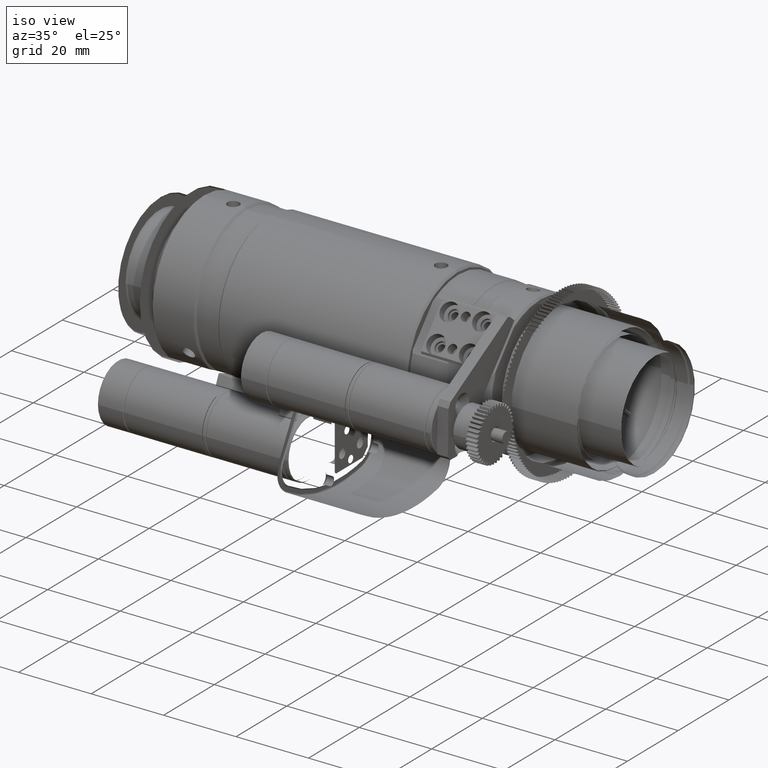
[diagram: clean part render]
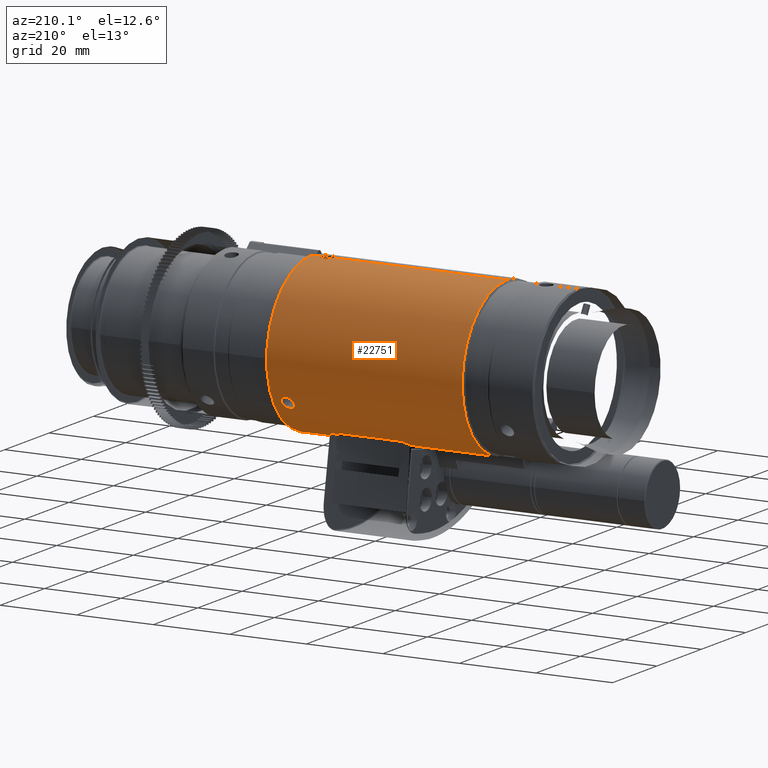
[diagram: tour spotlight — one face highlighted and labeled with its STEP entity id]
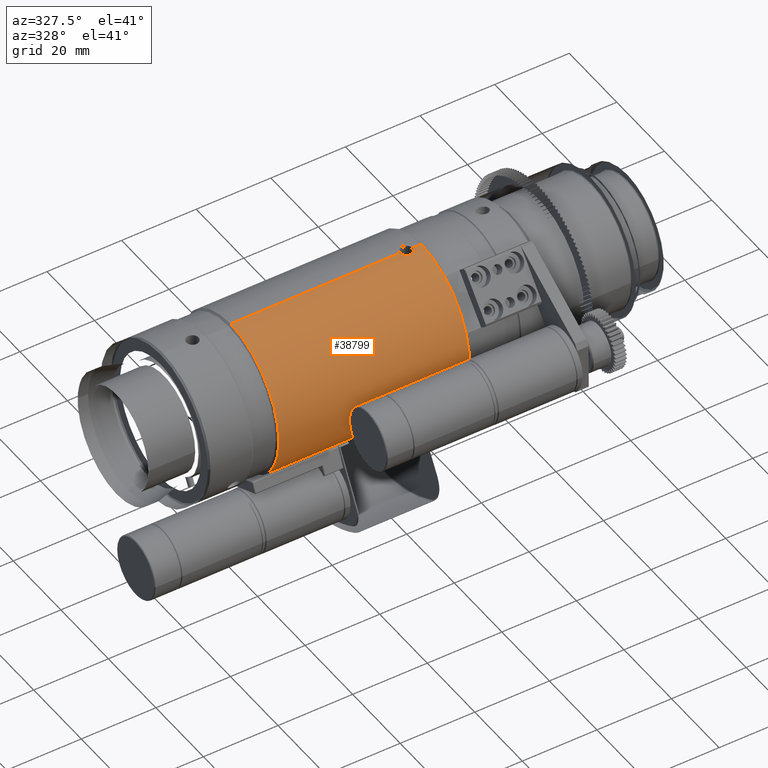
[diagram: tour spotlight — one face highlighted and labeled with its STEP entity id]
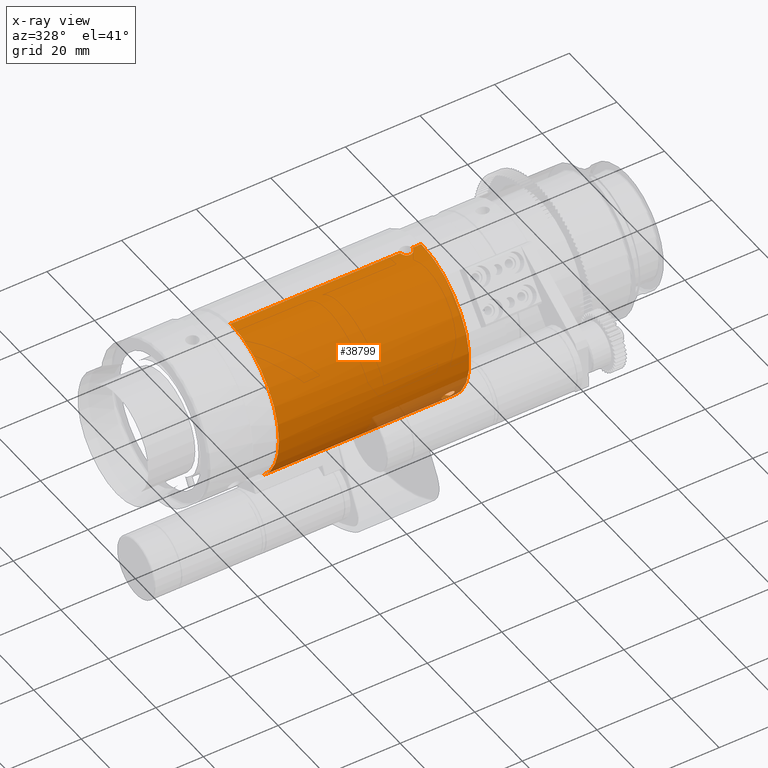
[diagram: x-ray of the same camera — body ghosted, this tour face saturated]
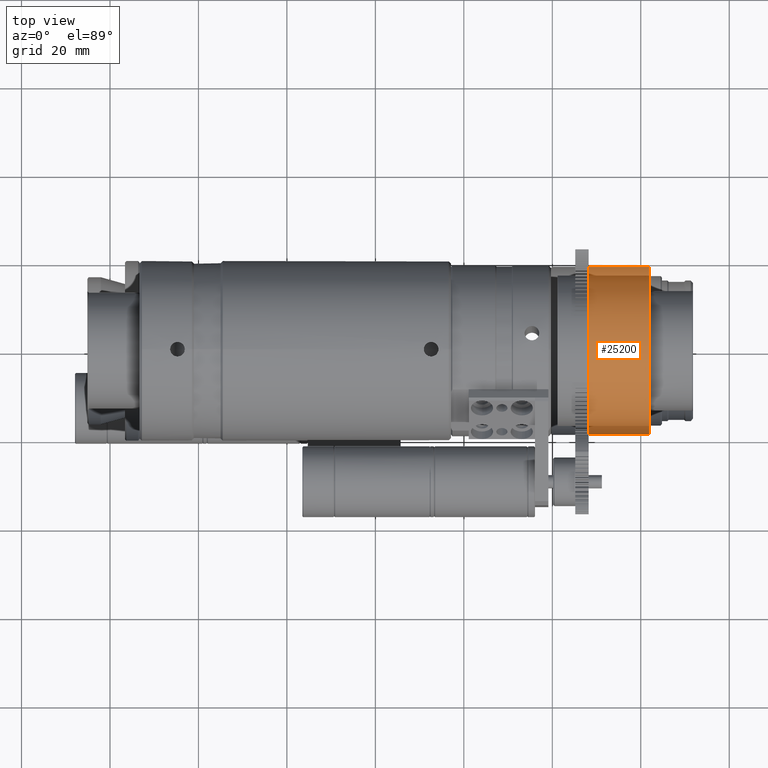
[diagram: tour spotlight — one face highlighted and labeled with its STEP entity id]
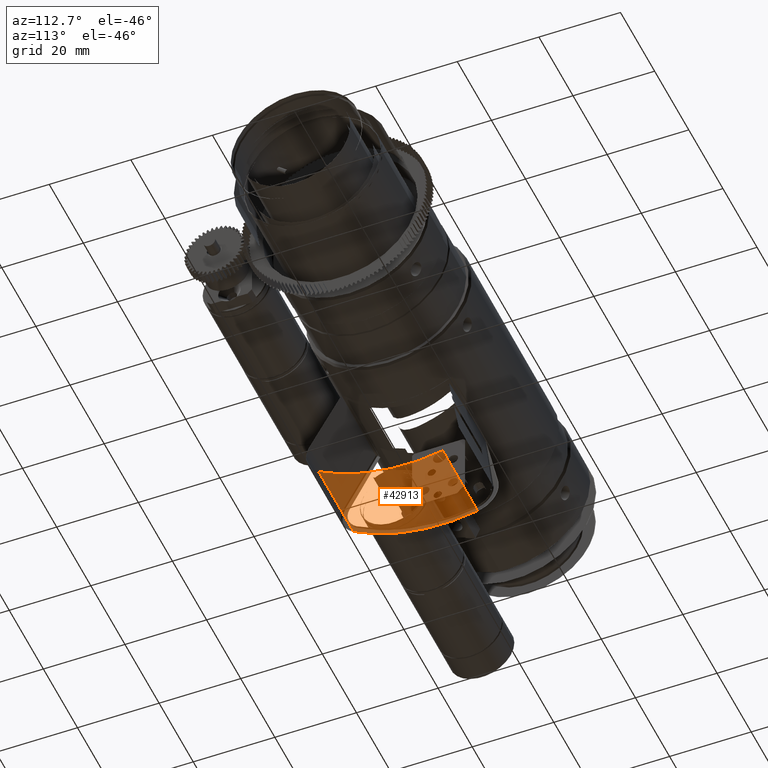
[diagram: tour spotlight — one face highlighted and labeled with its STEP entity id]
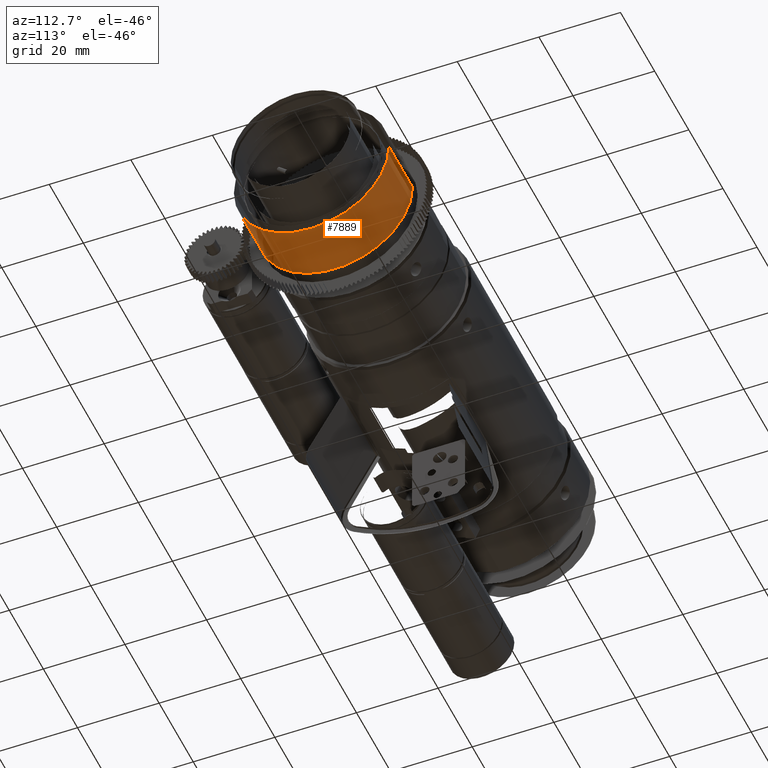
[diagram: tour spotlight — one face highlighted and labeled with its STEP entity id]
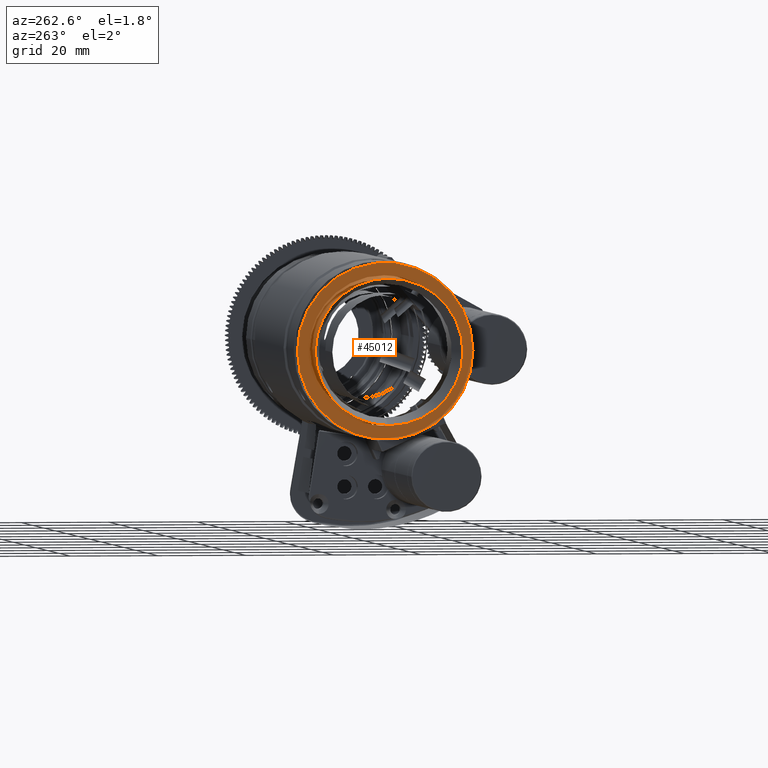
[diagram: tour spotlight — one face highlighted and labeled with its STEP entity id]
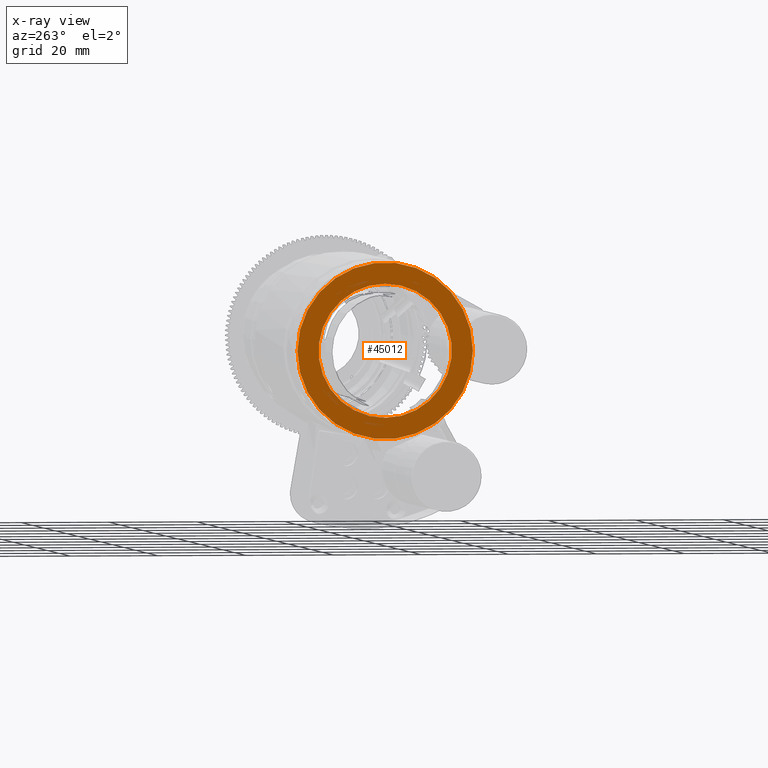
[diagram: x-ray of the same camera — body ghosted, this tour face saturated]
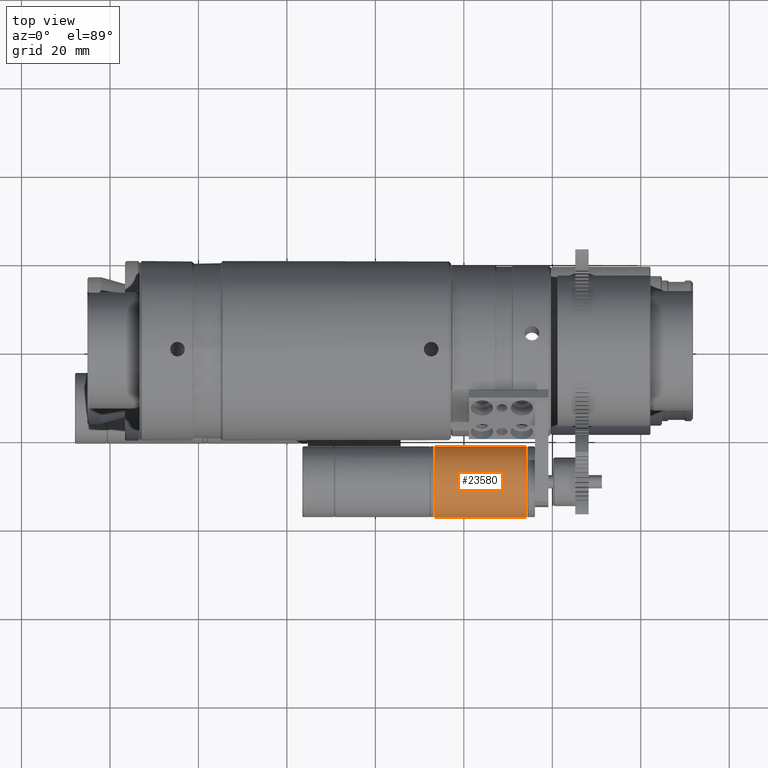
[diagram: tour spotlight — one face highlighted and labeled with its STEP entity id]
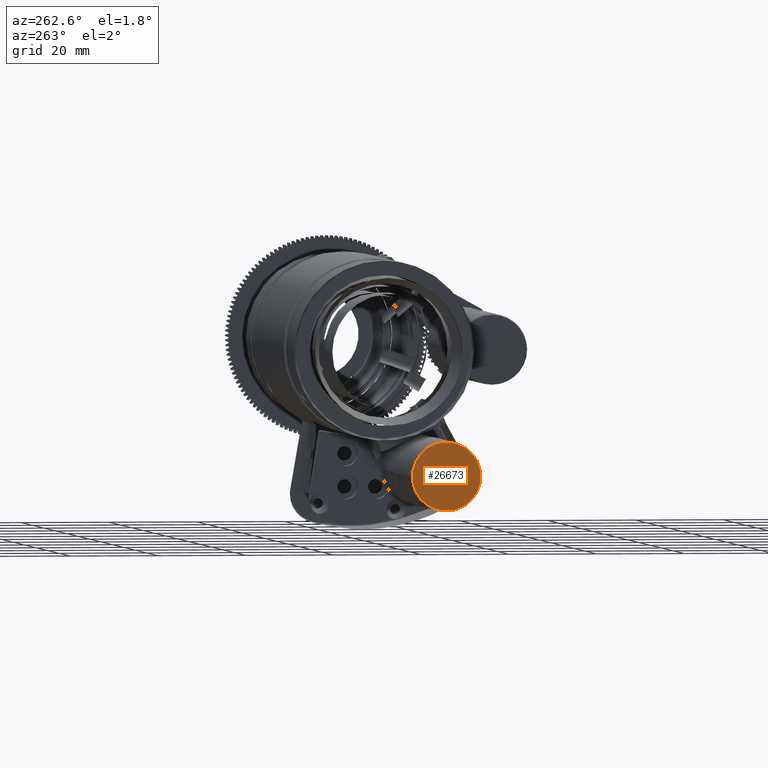
[diagram: tour spotlight — one face highlighted and labeled with its STEP entity id]
A machine part: a face-by-face anatomy tour. The part has 1053 B-rep faces; the first image is the clean iso view, then the 8 largest visible faces are spotlighted one at a time (largest first), each with its STEP entity span.

Face 1 — auxiliary view, entity #22751. In plain terms, the highlighted cylindrical surface (partial cylindrical patch) has radius 20.3 mm, axis along (1, 0, 0).
Definition (entity closure, byte-faithful):
#33 = CARTESIAN_POINT ( 'NONE',  ( 25.49999999995655700, -2.881191196803304800E-028, -6.387805538809413300E-030 ) ) ;
#459 = CARTESIAN_POINT ( 'NONE',  ( 72.59999999996361500, 16.69714670067482100, -11.54535803065882000 ) ) ;
#576 = CARTESIAN_POINT ( 'NONE',  ( 72.81536910011152500, 16.69714670067482500, -11.54535803065881800 ) ) ;
#720 = CARTESIAN_POINT ( 'NONE',  ( 74.25008590440761200, 17.63413019203154900, -10.05680452487221600 ) ) ;
#861 = CARTESIAN_POINT ( 'NONE',  ( 72.48976462470867000, 1.649913039146064400, 20.23283932053857000 ) ) ;
#1017 = CARTESIAN_POINT ( 'NONE',  ( 74.24999999996359200, -9.736181576447735000E-016, 20.29999999999886700 ) ) ;
#1175 = DIRECTION ( 'NONE',  ( -1.000000000000000000, -0.0000000000000000000, -0.0000000000000000000 ) ) ;
#1385 = CARTESIAN_POINT ( 'NONE',  ( 86.05437734107521000, 2.486033002268700200E-015, 20.29999999999886700 ) ) ;
#1905 = DIRECTION ( 'NONE',  ( 1.000000000000000000, 0.0000000000000000000, 0.0000000000000000000 ) ) ;
#2118 = CARTESIAN_POINT ( 'NONE',  ( 72.06791410130303200, 18.31078802320767100, -8.763947046677808200 ) ) ;
#2272 = CARTESIAN_POINT ( 'NONE',  ( 71.11672472877614800, 17.20372665230923600, -10.77644569429925200 ) ) ;
#3571 = ORIENTED_EDGE ( 'NONE', *, *, #29007, .T. ) ;
#3576 = DIRECTION ( 'NONE',  ( 0.0000000000000000000, 0.0000000000000000000, -1.000000000000000000 ) ) ;
#3895 = B_SPLINE_CURVE_WITH_KNOTS ( 'NONE', 3,
 ( #19797, #16257, #36886, #23343, #2118, #26868, #5702, #30304, #9305, #33705, #12866, #37030, #16417, #40468, #19943, #43916, #23497, #2272, #27022, #5872, #30452, #9461, #33845, #13035, #37164, #16579, #40620, #20095, #44057, #23657 ),
 .UNSPECIFIED., .F., .F.,
 ( 4, 2, 2, 2, 2, 2, 2, 2, 2, 2, 2, 2, 2, 2, 4 ),
 ( 1.398578778534940500E-017, 0.0003225487050078780600, 0.0006450974100157421400, 0.0009676461150236061600, 0.001290194820031470200, 0.001935292230047198200, 0.002580389640062926500, 0.002902938345070793000, 0.003225487050078659100, 0.003548035755086525600, 0.003870584460094391700, 0.004193133165102258200, 0.004515681870110124300, 0.004838230575117991200, 0.005160779280125857300 ),
 .UNSPECIFIED. ) ;
#4146 = CARTESIAN_POINT ( 'NONE',  ( 73.03248625020323500, 16.72193184341730900, -11.50972587693092700 ) ) ;
#4297 = CARTESIAN_POINT ( 'NONE',  ( 74.19767282420471600, 17.78969473680179900, -9.778951138262668200 ) ) ;
#4437 = CARTESIAN_POINT ( 'NONE',  ( 72.81511083108429700, 1.639446551560367100, 20.23370094805373800 ) ) ;
#4676 = CARTESIAN_POINT ( 'NONE',  ( 86.05437734107521000, -2.881191196803304800E-028, -6.387805538809413300E-030 ) ) ;
#5702 = CARTESIAN_POINT ( 'NONE',  ( 71.77333825136659600, 18.25261730728905400, -8.884568849387918000 ) ) ;
#5872 = CARTESIAN_POINT ( 'NONE',  ( 71.28784742782740100, 17.05581173287130900, -11.00896410661622000 ) ) ;
#6862 = CARTESIAN_POINT ( 'NONE',  ( 74.24999999996359200, -9.736181576447735000E-016, 20.29999999999886700 ) ) ;
#7682 = CARTESIAN_POINT ( 'NONE',  ( 25.49999999995655700, -2.881191196803304800E-028, -6.387805538809413300E-030 ) ) ;
#7760 = CARTESIAN_POINT ( 'NONE',  ( 73.61370757154759300, 16.88386507612102200, -11.27156953840244700 ) ) ;
#7901 = CARTESIAN_POINT ( 'NONE',  ( 71.15764126575805900, 0.8296314604112260400, 20.28401293669425300 ) ) ;
#7908 = CARTESIAN_POINT ( 'NONE',  ( 74.08332929959604500, 17.93449333044694800, -9.510728506631759100 ) ) ;
#8050 = CARTESIAN_POINT ( 'NONE',  ( 73.13073287255335200, 1.566056061105353600, 20.23954517854183200 ) ) ;
#8116 = B_SPLINE_CURVE_WITH_KNOTS ( 'NONE', 3,
 ( #21967, #42446, #28954, #7901, #32384, #11472, #35724, #15044, #39119, #18568, #42581, #22104, #861, #25630, #4437, #29095, #8050, #32533, #11623, #35871, #15189, #39266, #18718, #42723, #22245, #1017 ),
 .UNSPECIFIED., .F., .F.,
 ( 4, 2, 2, 2, 2, 2, 2, 2, 2, 2, 2, 2, 4 ),
 ( 0.005160779730780955600, 0.005805727833628336600, 0.006450675936475716700, 0.006773149987899421100, 0.007095624039323126400, 0.007418098090746830800, 0.007740572142170535100, 0.008063046193594240400, 0.008385520245017943900, 0.008707994296441649200, 0.009030468347865354400, 0.009675416450712792700, 0.01032036455356023300 ),
 .UNSPECIFIED. ) ;
#9082 = AXIS2_PLACEMENT_3D ( 'NONE', #40524, #20008, #43977 ) ;
#9305 = CARTESIAN_POINT ( 'NONE',  ( 71.50912510759623300, 18.16877591260530900, -9.054909831896447200 ) ) ;
#9461 = CARTESIAN_POINT ( 'NONE',  ( 71.51007289670134500, 16.92564877152892300, -11.20796007544970900 ) ) ;
#11245 = DIRECTION ( 'NONE',  ( 0.0000000000000000000, 0.0000000000000000000, -1.000000000000000000 ) ) ;
#11326 = CARTESIAN_POINT ( 'NONE',  ( 73.91171324879049100, 17.05548212927959300, -11.00947690588699000 ) ) ;
#11472 = CARTESIAN_POINT ( 'NONE',  ( 71.50846353672727700, 1.242020835729175300, 20.26211230937784400 ) ) ;
#11478 = CARTESIAN_POINT ( 'NONE',  ( 73.91318304272236600, 18.06134709647924900, -9.267458983140624400 ) ) ;
#11623 = CARTESIAN_POINT ( 'NONE',  ( 73.42550156942438400, 1.432709788496933500, 20.24946741743961800 ) ) ;
#11668 = CARTESIAN_POINT ( 'NONE',  ( 86.05437734107521000, -2.881191196803304800E-028, -20.29999999999886700 ) ) ;
#11745 = ORIENTED_EDGE ( 'NONE', *, *, #42193, .T. ) ;
#12866 = CARTESIAN_POINT ( 'NONE',  ( 71.15800113791607400, 17.98157889224662400, -9.422965718585480500 ) ) ;
#13035 = CARTESIAN_POINT ( 'NONE',  ( 71.77213123191981500, 16.82097687779663900, -11.36434434908748500 ) ) ;
#13311 = AXIS2_PLACEMENT_3D ( 'NONE', #39459, #18915, #42923 ) ;
#13432 = ORIENTED_EDGE ( 'NONE', *, *, #40214, .T. ) ;
#13838 = B_SPLINE_CURVE_WITH_KNOTS ( 'NONE', 3,
 ( #38822, #576, #4146, #28819, #7760, #32255, #11326, #35600, #14903, #38978, #18423, #42451, #21971, #720, #25493, #4297, #28956, #7908, #32393, #11478, #35727, #15051, #39125, #18571, #42587, #22110 ),
 .UNSPECIFIED., .F., .F.,
 ( 4, 2, 2, 2, 2, 2, 2, 2, 2, 2, 2, 2, 4 ),
 ( 0.005160779280125857300, 0.005805727308250300400, 0.006450675336374743500, 0.006773149350436965000, 0.007095623364499186600, 0.007418097378561408100, 0.007740571392623629700, 0.008063045406685851200, 0.008385519420748072800, 0.008707993434810294400, 0.009030467448872515900, 0.009675415476996959000, 0.01032036350512140200 ),
 .UNSPECIFIED. ) ;
#14076 = ORIENTED_EDGE ( 'NONE', *, *, #40677, .T. ) ;
#14464 = CARTESIAN_POINT ( 'NONE',  ( 47.24999999996359200, 10.11582918005211900, -17.59999999999886800 ) ) ;
#14525 = VECTOR ( 'NONE', #42761, 1000.000000000000000 ) ;
#14704 = LINE ( 'NONE', #11668, #14525 ) ;
#14903 = CARTESIAN_POINT ( 'NONE',  ( 74.08230960318829300, 17.20269212843926700, -10.77809593790070000 ) ) ;
#15044 = CARTESIAN_POINT ( 'NONE',  ( 71.77254231596391800, 1.431587278686799400, 20.24954732189714300 ) ) ;
#15051 = CARTESIAN_POINT ( 'NONE',  ( 73.61546196352415400, 18.20280999273230900, -8.987267581661619400 ) ) ;
#15189 = CARTESIAN_POINT ( 'NONE',  ( 73.68976093156322800, 1.243584179416428600, 20.26201618077301000 ) ) ;
#16257 = CARTESIAN_POINT ( 'NONE',  ( 72.49093223783499700, 18.34714670067479100, -8.687474198170171700 ) ) ;
#16417 = CARTESIAN_POINT ( 'NONE',  ( 70.95007760666185000, 17.68827544316115000, -9.962995618303333200 ) ) ;
#16579 = CARTESIAN_POINT ( 'NONE',  ( 72.06850035191371300, 16.74508062673018900, -11.47580056928927100 ) ) ;
#17009 = CIRCLE ( 'NONE', #31173, 20.29999999999886700 ) ;
#17172 = VERTEX_POINT ( 'NONE', #35805 ) ;
#18423 = CARTESIAN_POINT ( 'NONE',  ( 74.19706635934069500, 17.36248869061477900, -10.51879793699392400 ) ) ;
#18462 = VECTOR ( 'NONE', #1175, 1000.000000000000000 ) ;
#18478 = LINE ( 'NONE', #42883, #18462 ) ;
#18568 = CARTESIAN_POINT ( 'NONE',  ( 72.06682923268344600, 1.565217600882151000, 20.23961022402257700 ) ) ;
#18571 = CARTESIAN_POINT ( 'NONE',  ( 73.03474814098142100, 18.32841710750639700, -8.727311431374897000 ) ) ;
#18588 = ORIENTED_EDGE ( 'NONE', *, *, #41346, .T. ) ;
#18617 = DIRECTION ( 'NONE',  ( 1.000000000000000000, 0.0000000000000000000, 0.0000000000000000000 ) ) ;
#18718 = CARTESIAN_POINT ( 'NONE',  ( 74.04121095017507100, 0.8316172407933660700, 20.28393027375132000 ) ) ;
#18915 = DIRECTION ( 'NONE',  ( 1.000000000000000000, 0.0000000000000000000, 0.0000000000000000000 ) ) ;
#19673 = EDGE_LOOP ( 'NONE', ( #3571, #33222, #13432, #14076, #18588, #38964, #27933, #32351, #11745, #39627, #37497 ) ) ;
#19797 = CARTESIAN_POINT ( 'NONE',  ( 72.59999999996360000, 18.34714670067478400, -8.687474198170170000 ) ) ;
#19875 = VERTEX_POINT ( 'NONE', #35028 ) ;
#19890 = CARTESIAN_POINT ( 'NONE',  ( 47.24999999996359200, -2.881191196803304800E-028, -6.387805538809413300E-030 ) ) ;
#19943 = CARTESIAN_POINT ( 'NONE',  ( 70.96070207753257400, 17.47133481455090700, -10.33700453908909000 ) ) ;
#20008 = DIRECTION ( 'NONE',  ( -1.000000000000000000, -0.0000000000000000000, -0.0000000000000000000 ) ) ;
#20095 = CARTESIAN_POINT ( 'NONE',  ( 72.38288919354268100, 16.70331359339795800, -11.53645366610843600 ) ) ;
#20293 = VECTOR ( 'NONE', #18617, 1000.000000000000000 ) ;
#20387 = CIRCLE ( 'NONE', #13311, 20.29999999999886700 ) ;
#20514 = LINE ( 'NONE', #22153, #20293 ) ;
#21967 = CARTESIAN_POINT ( 'NONE',  ( 70.94999999996362300, 2.486033011302258000E-015, 20.29999999999886700 ) ) ;
#21971 = CARTESIAN_POINT ( 'NONE',  ( 74.24991305682715400, 17.52519199051890900, -10.24546292641093900 ) ) ;
#22104 = CARTESIAN_POINT ( 'NONE',  ( 72.38260801646630700, 1.639147388314622400, 20.23372534588607500 ) ) ;
#22110 = CARTESIAN_POINT ( 'NONE',  ( 72.59999999996360000, 18.34714670067478400, -8.687474198170170000 ) ) ;
#22153 = CARTESIAN_POINT ( 'NONE',  ( 86.05437734107521000, -2.881191196803304800E-028, -20.29999999999886700 ) ) ;
#22245 = CARTESIAN_POINT ( 'NONE',  ( 74.24999999996360600, 0.2180849660803435300, 20.29999999999886700 ) ) ;
#22352 = VECTOR ( 'NONE', #1905, 1000.000000000000000 ) ;
#22546 = AXIS2_PLACEMENT_3D ( 'NONE', #7682, #32172, #11245 ) ;
#22751 = ADVANCED_FACE ( 'NONE', ( #23581, #23518 ), #23428, .T. ) ;
#23123 = LINE ( 'NONE', #43557, #22352 ) ;
#23314 = AXIS2_PLACEMENT_3D ( 'NONE', #4676, #36077, #29311 ) ;
#23343 = CARTESIAN_POINT ( 'NONE',  ( 72.17273551139705000, 18.32448771074985700, -8.735192776498152500 ) ) ;
#23428 = CYLINDRICAL_SURFACE ( 'NONE', #23314, 20.29999999999886700 ) ;
#23437 = DIRECTION ( 'NONE',  ( 0.0000000000000000000, 2.664535259100375700E-015, -1.000000000000000000 ) ) ;
#23497 = CARTESIAN_POINT ( 'NONE',  ( 71.03403428705839000, 17.30902198687935800, -10.60649566950758200 ) ) ;
#23518 = FACE_OUTER_BOUND ( 'NONE', #19673, .T. ) ;
#23581 = FACE_BOUND ( 'NONE', #25851, .T. ) ;
#23657 = CARTESIAN_POINT ( 'NONE',  ( 72.59999999996361500, 16.69714670067482100, -11.54535803065882000 ) ) ;
#23973 = CARTESIAN_POINT ( 'NONE',  ( 25.49999999995655700, 2.486033002268700200E-015, 20.29999999999886700 ) ) ;
#24010 = CARTESIAN_POINT ( 'NONE',  ( 25.49999999995655700, 20.29999999999870000, 0.0000000000000000000 ) ) ;
#24542 = VERTEX_POINT ( 'NONE', #28864 ) ;
#24793 = DIRECTION ( 'NONE',  ( 1.000000000000000000, 0.0000000000000000000, 0.0000000000000000000 ) ) ;
#24830 = CARTESIAN_POINT ( 'NONE',  ( 76.59999999996361500, 2.486033002268700200E-015, 20.29999999999886700 ) ) ;
#24972 = CARTESIAN_POINT ( 'NONE',  ( 63.74999999996358500, 10.11582918005211900, -17.59999999999886800 ) ) ;
#25493 = CARTESIAN_POINT ( 'NONE',  ( 74.23944653618767100, 17.68712142986225500, -9.963275551666219700 ) ) ;
#25630 = CARTESIAN_POINT ( 'NONE',  ( 72.70761656736468100, 1.650085921739412200, 20.23282522186046600 ) ) ;
#25851 = EDGE_LOOP ( 'NONE', ( #35044, #36031 ) ) ;
#26146 = DIRECTION ( 'NONE',  ( 1.000000000000000000, 0.0000000000000000000, 0.0000000000000000000 ) ) ;
#26868 = CARTESIAN_POINT ( 'NONE',  ( 71.86809986461528900, 18.27476429624011100, -8.838818687171135800 ) ) ;
#27022 = CARTESIAN_POINT ( 'NONE',  ( 71.16839488401620900, 17.15218694708460500, -10.85819909101758200 ) ) ;
#27742 = EDGE_CURVE ( 'NONE', #42168, #33584, #43893, .T. ) ;
#27933 = ORIENTED_EDGE ( 'NONE', *, *, #41819, .F. ) ;
#28033 = LINE ( 'NONE', #1385, #28109 ) ;
#28109 = VECTOR ( 'NONE', #26146, 1000.000000000000000 ) ;
#28819 = CARTESIAN_POINT ( 'NONE',  ( 73.42963076095408300, 16.81484896361437400, -11.37355039857053300 ) ) ;
#28864 = CARTESIAN_POINT ( 'NONE',  ( 63.74999999996358500, -2.881191196803304800E-028, -20.29999999999886700 ) ) ;
#28936 = VERTEX_POINT ( 'NONE', #24830 ) ;
#28954 = CARTESIAN_POINT ( 'NONE',  ( 70.99325094579037900, 0.4324864797384361800, 20.29636481296410000 ) ) ;
#28956 = CARTESIAN_POINT ( 'NONE',  ( 74.16605592466449100, 17.83988649151913100, -9.687025225342262400 ) ) ;
#28964 = VERTEX_POINT ( 'NONE', #24972 ) ;
#29007 = EDGE_CURVE ( 'NONE', #41649, #42168, #37549, .T. ) ;
#29095 = CARTESIAN_POINT ( 'NONE',  ( 73.02602698010188900, 1.597672894331896100, 20.23704228323424200 ) ) ;
#29311 = DIRECTION ( 'NONE',  ( 0.0000000000000000000, 0.0000000000000000000, -1.000000000000000000 ) ) ;
#29547 = VERTEX_POINT ( 'NONE', #44244 ) ;
#30304 = CARTESIAN_POINT ( 'NONE',  ( 71.59399962374294500, 18.19976295867303400, -8.992342879026312000 ) ) ;
#30452 = CARTESIAN_POINT ( 'NONE',  ( 71.35604264253780100, 17.01037325901697300, -11.07895107755934700 ) ) ;
#30517 = CARTESIAN_POINT ( 'NONE',  ( 72.59999999996360000, 18.34714670067478400, -8.687474198170170000 ) ) ;
#31173 = AXIS2_PLACEMENT_3D ( 'NONE', #19890, #43856, #23437 ) ;
#31975 = EDGE_CURVE ( 'NONE', #34518, #35991, #3895, .T. ) ;
#32172 = DIRECTION ( 'NONE',  ( 1.000000000000000000, 0.0000000000000000000, 0.0000000000000000000 ) ) ;
#32255 = CARTESIAN_POINT ( 'NONE',  ( 73.84201992332059200, 17.00923781708344200, -11.08068697436171500 ) ) ;
#32351 = ORIENTED_EDGE ( 'NONE', *, *, #41876, .T. ) ;
#32384 = CARTESIAN_POINT ( 'NONE',  ( 71.28046785077391700, 1.013708703274529600, 20.27524694404361900 ) ) ;
#32393 = CARTESIAN_POINT ( 'NONE',  ( 74.03270928384142700, 17.97869699091549800, -9.426797412299647400 ) ) ;
#32533 = CARTESIAN_POINT ( 'NONE',  ( 73.33071341318246500, 1.483329658678156800, 20.24577619515850900 ) ) ;
#32846 = CIRCLE ( 'NONE', #9082, 20.29999999999886700 ) ;
#33133 = VERTEX_POINT ( 'NONE', #14464 ) ;
#33222 = ORIENTED_EDGE ( 'NONE', *, *, #27742, .T. ) ;
#33584 = VERTEX_POINT ( 'NONE', #23973 ) ;
#33705 = CARTESIAN_POINT ( 'NONE',  ( 71.28091415068219300, 18.06600751607729500, -9.259190749419929000 ) ) ;
#33845 = CARTESIAN_POINT ( 'NONE',  ( 71.59345324408406000, 16.88772755141147300, -11.26491206167645500 ) ) ;
#34518 = VERTEX_POINT ( 'NONE', #30517 ) ;
#35028 = CARTESIAN_POINT ( 'NONE',  ( 70.94999999996362300, 2.486033011302258000E-015, 20.29999999999886700 ) ) ;
#35044 = ORIENTED_EDGE ( 'NONE', *, *, #31975, .T. ) ;
#35600 = CARTESIAN_POINT ( 'NONE',  ( 74.03158682337927100, 17.15214743744571600, -10.85826370501098700 ) ) ;
#35724 = CARTESIAN_POINT ( 'NONE',  ( 71.59325535496348900, 1.311713983714276200, 20.25766559362599800 ) ) ;
#35727 = CARTESIAN_POINT ( 'NONE',  ( 73.84358325273134900, 18.09997077939182100, -9.191674240262374300 ) ) ;
#35805 = CARTESIAN_POINT ( 'NONE',  ( 76.59999999996361500, -4.972066004538265000E-015, -20.29999999999886700 ) ) ;
#35871 = CARTESIAN_POINT ( 'NONE',  ( 73.60481764291023400, 1.313183796602852100, 20.25756985288075600 ) ) ;
#35991 = VERTEX_POINT ( 'NONE', #459 ) ;
#36031 = ORIENTED_EDGE ( 'NONE', *, *, #39612, .T. ) ;
#36077 = DIRECTION ( 'NONE',  ( 1.000000000000000000, 0.0000000000000000000, 0.0000000000000000000 ) ) ;
#36886 = CARTESIAN_POINT ( 'NONE',  ( 72.38369630747033100, 18.34255601598785300, -8.697188137803850700 ) ) ;
#37030 = CARTESIAN_POINT ( 'NONE',  ( 70.99342748410437300, 17.79373076116562300, -9.773055202487844500 ) ) ;
#37164 = CARTESIAN_POINT ( 'NONE',  ( 71.86859899979587900, 16.79188358790449300, -11.40720690932089600 ) ) ;
#37497 = ORIENTED_EDGE ( 'NONE', *, *, #42848, .F. ) ;
#37549 = CIRCLE ( 'NONE', #22546, 20.29999999999886700 ) ;
#37668 = VERTEX_POINT ( 'NONE', #6862 ) ;
#38822 = CARTESIAN_POINT ( 'NONE',  ( 72.59999999996361500, 16.69714670067482100, -11.54535803065882000 ) ) ;
#38964 = ORIENTED_EDGE ( 'NONE', *, *, #39216, .T. ) ;
#38978 = CARTESIAN_POINT ( 'NONE',  ( 74.16521752324490500, 17.30787813868498800, -10.60836098786651300 ) ) ;
#39119 = CARTESIAN_POINT ( 'NONE',  ( 71.86724182112278900, 1.482309905699655200, 20.24585106884704900 ) ) ;
#39125 = CARTESIAN_POINT ( 'NONE',  ( 73.43161636488382300, 18.25670592309245400, -8.876346507694536900 ) ) ;
#39216 = EDGE_CURVE ( 'NONE', #28936, #17172, #32846, .T. ) ;
#39266 = CARTESIAN_POINT ( 'NONE',  ( 73.91820198585256200, 1.015463205508387900, 20.27515819329664000 ) ) ;
#39459 = CARTESIAN_POINT ( 'NONE',  ( 63.74999999996358500, -2.881191196803304800E-028, -6.387805538809413300E-030 ) ) ;
#39612 = EDGE_CURVE ( 'NONE', #35991, #34518, #13838, .T. ) ;
#39627 = ORIENTED_EDGE ( 'NONE', *, *, #42393, .T. ) ;
#40214 = EDGE_CURVE ( 'NONE', #33584, #19875, #28033, .T. ) ;
#40468 = CARTESIAN_POINT ( 'NONE',  ( 70.94996135690622900, 17.52678118974893800, -10.24273076808599600 ) ) ;
#40524 = CARTESIAN_POINT ( 'NONE',  ( 76.59999999996361500, -2.881191196803304800E-028, -6.387805538809413300E-030 ) ) ;
#40620 = CARTESIAN_POINT ( 'NONE',  ( 72.17136825811350300, 16.72733953890290300, -11.50158946145772100 ) ) ;
#40677 = EDGE_CURVE ( 'NONE', #19875, #37668, #8116, .T. ) ;
#41346 = EDGE_CURVE ( 'NONE', #37668, #28936, #23123, .T. ) ;
#41649 = VERTEX_POINT ( 'NONE', #42049 ) ;
#41819 = EDGE_CURVE ( 'NONE', #24542, #17172, #20514, .T. ) ;
#41876 = EDGE_CURVE ( 'NONE', #24542, #28964, #20387, .T. ) ;
#41993 = AXIS2_PLACEMENT_3D ( 'NONE', #33, #24793, #3576 ) ;
#42049 = CARTESIAN_POINT ( 'NONE',  ( 25.49999999995655700, -2.881191196803304800E-028, -20.29999999999886700 ) ) ;
#42168 = VERTEX_POINT ( 'NONE', #24010 ) ;
#42193 = EDGE_CURVE ( 'NONE', #28964, #33133, #18478, .T. ) ;
#42393 = EDGE_CURVE ( 'NONE', #33133, #29547, #17009, .T. ) ;
#42446 = CARTESIAN_POINT ( 'NONE',  ( 70.94999999996366600, 0.2153690974750128400, 20.29999999999887100 ) ) ;
#42451 = CARTESIAN_POINT ( 'NONE',  ( 74.23914740998603200, 17.47084894191443300, -10.33782186051979800 ) ) ;
#42581 = CARTESIAN_POINT ( 'NONE',  ( 72.17169824952739500, 1.597066387374299800, 20.23709031673503100 ) ) ;
#42587 = CARTESIAN_POINT ( 'NONE',  ( 72.81808501169884100, 18.34714670067478400, -8.687474198170170000 ) ) ;
#42723 = CARTESIAN_POINT ( 'NONE',  ( 74.20613516092774400, 0.4347482983393067300, 20.29631514592441400 ) ) ;
#42761 = DIRECTION ( 'NONE',  ( 1.000000000000000000, 0.0000000000000000000, 0.0000000000000000000 ) ) ;
#42848 = EDGE_CURVE ( 'NONE', #41649, #29547, #14704, .T. ) ;
#42883 = CARTESIAN_POINT ( 'NONE',  ( 86.05437734107521000, 10.11582918005211900, -17.59999999999886800 ) ) ;
#42923 = DIRECTION ( 'NONE',  ( 0.0000000000000000000, 0.0000000000000000000, -1.000000000000000000 ) ) ;
#43557 = CARTESIAN_POINT ( 'NONE',  ( 86.05437734107521000, 2.486033002268700200E-015, 20.29999999999886700 ) ) ;
#43856 = DIRECTION ( 'NONE',  ( -1.000000000000000000, -0.0000000000000000000, -0.0000000000000000000 ) ) ;
#43893 = CIRCLE ( 'NONE', #41993, 20.29999999999886700 ) ;
#43916 = CARTESIAN_POINT ( 'NONE',  ( 71.00285504767033700, 17.36259330494213400, -10.51862903473954900 ) ) ;
#43977 = DIRECTION ( 'NONE',  ( 0.0000000000000000000, 0.0000000000000000000, -1.000000000000000000 ) ) ;
#44057 = CARTESIAN_POINT ( 'NONE',  ( 72.49229050815630200, 16.69714670067481800, -11.54535803065882000 ) ) ;
#44244 = CARTESIAN_POINT ( 'NONE',  ( 47.24999999996359200, -2.881191196803304800E-028, -20.29999999999886700 ) ) ;

Face 2 — auxiliary view, entity #38799. An x-ray twin of the same camera follows (body ghosted, this face saturated) — the face is partly hidden behind the body. In plain terms, the highlighted cylindrical surface (partial cylindrical patch) has radius 20.3 mm, axis along (1, 0, 0).
Definition (entity closure, byte-faithful):
#185 = CARTESIAN_POINT ( 'NONE',  ( 63.74999999996358500, -10.11582918005211900, -17.59999999999886800 ) ) ;
#199 = EDGE_CURVE ( 'NONE', #3148, #24542, #10378, .T. ) ;
#500 = CARTESIAN_POINT ( 'NONE',  ( 70.96070207753257400, -17.68777593716170000, -9.962117517879953300 ) ) ;
#635 = CARTESIAN_POINT ( 'NONE',  ( 72.38288919354269500, -18.34251874113104500, -8.697267066206270800 ) ) ;
#710 = EDGE_CURVE ( 'NONE', #17172, #28936, #7990, .T. ) ;
#886 = CARTESIAN_POINT ( 'NONE',  ( 74.19734496306826100, -0.4272646624742270100, 20.29577724148489200 ) ) ;
#1037 = CARTESIAN_POINT ( 'NONE',  ( 72.06901669291477200, -1.565965835200359800, 20.23955212249228100 ) ) ;
#1192 = CARTESIAN_POINT ( 'NONE',  ( 70.94999999996362300, 2.486033011302258000E-015, 20.29999999999886700 ) ) ;
#1385 = CARTESIAN_POINT ( 'NONE',  ( 86.05437734107521000, 2.486033002268700200E-015, 20.29999999999886700 ) ) ;
#1905 = DIRECTION ( 'NONE',  ( 1.000000000000000000, 0.0000000000000000000, 0.0000000000000000000 ) ) ;
#1948 = EDGE_CURVE ( 'NONE', #17612, #29515, #4683, .T. ) ;
#2605 = CARTESIAN_POINT ( 'NONE',  ( 48.69999999996360900, -2.881191196803304800E-028, -6.387805538809413300E-030 ) ) ;
#3060 = CARTESIAN_POINT ( 'NONE',  ( 86.05437734107521000, -10.11582918005211900, -17.59999999999886800 ) ) ;
#3148 = VERTEX_POINT ( 'NONE', #185 ) ;
#3755 = CARTESIAN_POINT ( 'NONE',  ( 72.59999999996361500, -16.69714670067465800, -11.54535803065904900 ) ) ;
#3907 = CARTESIAN_POINT ( 'NONE',  ( 72.17273551139705000, -16.72714270677670400, -11.50187548059597200 ) ) ;
#4054 = CARTESIAN_POINT ( 'NONE',  ( 71.03403428705839000, -17.84000568836293300, -9.686804920547055900 ) ) ;
#4211 = CARTESIAN_POINT ( 'NONE',  ( 72.59999999996361500, -18.34714670067466400, -8.687474198170424000 ) ) ;
#4220 = VECTOR ( 'NONE', #31239, 1000.000000000000000 ) ;
#4387 = LINE ( 'NONE', #3060, #4220 ) ;
#4456 = CARTESIAN_POINT ( 'NONE',  ( 74.08274030835929100, -0.7319008100417666600, 20.28704789657265900 ) ) ;
#4623 = CARTESIAN_POINT ( 'NONE',  ( 71.77261814404016600, -1.431605636496863700, 20.24954539925298000 ) ) ;
#4666 = AXIS2_PLACEMENT_3D ( 'NONE', #2605, #27362, #6223 ) ;
#4683 = B_SPLINE_CURVE_WITH_KNOTS ( 'NONE', 3,
 ( #33215, #32687, #32680, #32629, #32585, #32571, #32537, #32525, #32479, #32438, #32424, #32387, #32381, #32293, #32282, #32252, #32188, #32150, #32103, #32099, #32056, #32015, #32005, #31969, #31961, #31915 ),
 .UNSPECIFIED., .F., .F.,
 ( 4, 2, 2, 2, 2, 2, 2, 2, 2, 2, 2, 2, 4 ),
 ( 0.005160779280125856400, 0.005805727308250296100, 0.006450675336374734800, 0.006773149350436954600, 0.007095623364499174500, 0.007418097378561394300, 0.007740571392623614100, 0.008063045406685833900, 0.008385519420748052000, 0.008707993434810271800, 0.009030467448872491600, 0.009675415476996931200, 0.01032036350512137100 ),
 .UNSPECIFIED. ) ;
#6137 = CIRCLE ( 'NONE', #4666, 20.29999999999886700 ) ;
#6223 = DIRECTION ( 'NONE',  ( 0.0000000000000000000, 0.0000000000000000000, -1.000000000000000000 ) ) ;
#6250 = DIRECTION ( 'NONE',  ( 1.000000000000000000, 0.0000000000000000000, 0.0000000000000000000 ) ) ;
#6862 = CARTESIAN_POINT ( 'NONE',  ( 74.24999999996359200, -9.736181576447735000E-016, 20.29999999999886700 ) ) ;
#7030 = CARTESIAN_POINT ( 'NONE',  ( 25.49999999995663600, -13.83112587649392300, -14.85900255698659200 ) ) ;
#7524 = CARTESIAN_POINT ( 'NONE',  ( 71.86809986461528900, -16.79202367065492400, -11.40700078513113900 ) ) ;
#7677 = CARTESIAN_POINT ( 'NONE',  ( 71.16839488401622300, -17.97956972571268300, -9.425130081126253500 ) ) ;
#7749 = DIRECTION ( 'NONE',  ( 0.0000000000000000000, 0.0000000000000000000, -1.000000000000000000 ) ) ;
#7810 = DIRECTION ( 'NONE',  ( -1.000000000000000000, -0.0000000000000000000, -0.0000000000000000000 ) ) ;
#7913 = CARTESIAN_POINT ( 'NONE',  ( 76.59999999996361500, -2.881191196803304800E-028, -6.387805538809413300E-030 ) ) ;
#7955 = ORIENTED_EDGE ( 'NONE', *, *, #27674, .T. ) ;
#7990 = CIRCLE ( 'NONE', #14665, 20.29999999999886700 ) ;
#8069 = CARTESIAN_POINT ( 'NONE',  ( 73.91228337989510100, -1.006001337667165300, 20.27525630721063300 ) ) ;
#8224 = CARTESIAN_POINT ( 'NONE',  ( 71.51053464840302400, -1.243958327293438500, 20.26199690735409900 ) ) ;
#8261 = VECTOR ( 'NONE', #6250, 1000.000000000000000 ) ;
#8387 = LINE ( 'NONE', #27398, #8261 ) ;
#10002 = ORIENTED_EDGE ( 'NONE', *, *, #44088, .T. ) ;
#10378 = CIRCLE ( 'NONE', #30445, 20.29999999999886700 ) ;
#10855 = EDGE_LOOP ( 'NONE', ( #12804, #7955, #16016, #10002, #39649, #27700, #14627, #18259, #14484, #27666, #27076 ) ) ;
#11093 = CARTESIAN_POINT ( 'NONE',  ( 71.59399962374291700, -16.88747885211345000, -11.26528562555265500 ) ) ;
#11240 = CARTESIAN_POINT ( 'NONE',  ( 71.35604264253781500, -18.09983970995990500, -9.191939831384434700 ) ) ;
#11286 = CIRCLE ( 'NONE', #44509, 20.29999999999886700 ) ;
#11496 = CARTESIAN_POINT ( 'NONE',  ( 74.24999999996359200, -9.736181576447735000E-016, 20.29999999999886700 ) ) ;
#11645 = CARTESIAN_POINT ( 'NONE',  ( 73.61430815321065800, -1.319086785127211200, 20.25767098039612800 ) ) ;
#11800 = CARTESIAN_POINT ( 'NONE',  ( 71.28816460684642200, -1.006547877648413100, 20.27522772173222500 ) ) ;
#12804 = ORIENTED_EDGE ( 'NONE', *, *, #40214, .F. ) ;
#13898 = DIRECTION ( 'NONE',  ( 1.000000000000000000, 0.0000000000000000000, 0.0000000000000000000 ) ) ;
#14484 = ORIENTED_EDGE ( 'NONE', *, *, #710, .T. ) ;
#14627 = ORIENTED_EDGE ( 'NONE', *, *, #199, .T. ) ;
#14665 = AXIS2_PLACEMENT_3D ( 'NONE', #7913, #7810, #7749 ) ;
#14674 = CARTESIAN_POINT ( 'NONE',  ( 71.28091415068219300, -17.05169816552222500, -11.01602607917350300 ) ) ;
#14720 = AXIS2_PLACEMENT_3D ( 'NONE', #44476, #30867, #34218 ) ;
#14816 = CARTESIAN_POINT ( 'NONE',  ( 71.59345324408407400, -18.19956379251533100, -8.992745040874401900 ) ) ;
#15212 = CARTESIAN_POINT ( 'NONE',  ( 73.03315120098085300, -1.606572487050211600, 20.23649510964003900 ) ) ;
#15365 = CARTESIAN_POINT ( 'NONE',  ( 71.11701117267861600, -0.7314017364167158000, 20.28706610989487700 ) ) ;
#16016 = ORIENTED_EDGE ( 'NONE', *, *, #43551, .T. ) ;
#16619 = CARTESIAN_POINT ( 'NONE',  ( 72.59999999996361500, -16.69714670067465800, -11.54535803065904900 ) ) ;
#17172 = VERTEX_POINT ( 'NONE', #35805 ) ;
#17612 = VERTEX_POINT ( 'NONE', #26020 ) ;
#18177 = CARTESIAN_POINT ( 'NONE',  ( 70.99342748410437300, -17.36057945852499900, -10.52329526602604700 ) ) ;
#18259 = ORIENTED_EDGE ( 'NONE', *, *, #41819, .T. ) ;
#18341 = CARTESIAN_POINT ( 'NONE',  ( 71.86859899979589300, -18.27487276364956200, -8.838594309855745100 ) ) ;
#18617 = DIRECTION ( 'NONE',  ( 1.000000000000000000, 0.0000000000000000000, 0.0000000000000000000 ) ) ;
#18744 = CARTESIAN_POINT ( 'NONE',  ( 72.49292577876596500, -1.650038653598897800, 20.23282907660458100 ) ) ;
#18895 = CARTESIAN_POINT ( 'NONE',  ( 71.00300116117712400, -0.4286319601368583400, 20.29574986980845000 ) ) ;
#19875 = VERTEX_POINT ( 'NONE', #35028 ) ;
#19928 = CARTESIAN_POINT ( 'NONE',  ( 25.49999999995655700, -2.881191196803304800E-028, -6.387805538809413300E-030 ) ) ;
#20293 = VECTOR ( 'NONE', #18617, 1000.000000000000000 ) ;
#20514 = LINE ( 'NONE', #22153, #20293 ) ;
#20880 = VERTEX_POINT ( 'NONE', #43409 ) ;
#21322 = DIRECTION ( 'NONE',  ( 0.0000000000000000000, 0.0000000000000000000, -1.000000000000000000 ) ) ;
#21461 = DIRECTION ( 'NONE',  ( 1.000000000000000000, 0.0000000000000000000, 0.0000000000000000000 ) ) ;
#21472 = CARTESIAN_POINT ( 'NONE',  ( 63.74999999996358500, -2.881191196803304800E-028, -6.387805538809413300E-030 ) ) ;
#21732 = CARTESIAN_POINT ( 'NONE',  ( 70.94996135690622900, -17.63385564416147500, -10.05727237285075400 ) ) ;
#21886 = CARTESIAN_POINT ( 'NONE',  ( 72.17136825811351700, -18.32433842697326300, -8.735506247688853400 ) ) ;
#22131 = CARTESIAN_POINT ( 'NONE',  ( 74.23929214308445500, -0.2163037042157848800, 20.29912169615519000 ) ) ;
#22153 = CARTESIAN_POINT ( 'NONE',  ( 86.05437734107521000, -2.881191196803304800E-028, -20.29999999999886700 ) ) ;
#22272 = CARTESIAN_POINT ( 'NONE',  ( 72.17189698265376300, -1.597145027867305800, 20.23708414811935800 ) ) ;
#22352 = VECTOR ( 'NONE', #1905, 1000.000000000000000 ) ;
#22426 = CARTESIAN_POINT ( 'NONE',  ( 70.94999999996363700, -0.1077094873969802700, 20.29999999999886700 ) ) ;
#23123 = LINE ( 'NONE', #43557, #22352 ) ;
#23483 = DIRECTION ( 'NONE',  ( 0.0000000000000000000, 0.0000000000000000000, -1.000000000000000000 ) ) ;
#23973 = CARTESIAN_POINT ( 'NONE',  ( 25.49999999995655700, 2.486033002268700200E-015, 20.29999999999886700 ) ) ;
#24542 = VERTEX_POINT ( 'NONE', #28864 ) ;
#24830 = CARTESIAN_POINT ( 'NONE',  ( 76.59999999996361500, 2.486033002268700200E-015, 20.29999999999886700 ) ) ;
#24967 = CARTESIAN_POINT ( 'NONE',  ( 72.49093223783496900, -16.69714670067466900, -11.54535803065905400 ) ) ;
#25116 = CARTESIAN_POINT ( 'NONE',  ( 72.38369630747033100, -16.70326387682478500, -11.53652541128256100 ) ) ;
#25262 = CARTESIAN_POINT ( 'NONE',  ( 71.00285504767033700, -17.79069660954014900, -9.777132360287650300 ) ) ;
#25401 = CARTESIAN_POINT ( 'NONE',  ( 72.49229050815630200, -18.34714670067466400, -8.687474198170420400 ) ) ;
#25653 = CARTESIAN_POINT ( 'NONE',  ( 74.16559314484922500, -0.5320861984380849100, 20.29327167883494800 ) ) ;
#25812 = CARTESIAN_POINT ( 'NONE',  ( 71.86918826427586300, -1.483275590158608800, 20.24578011931711400 ) ) ;
#26020 = CARTESIAN_POINT ( 'NONE',  ( 72.59999999996361500, -18.34714670067466400, -8.687474198170424000 ) ) ;
#26146 = DIRECTION ( 'NONE',  ( 1.000000000000000000, 0.0000000000000000000, 0.0000000000000000000 ) ) ;
#27076 = ORIENTED_EDGE ( 'NONE', *, *, #36045, .T. ) ;
#27362 = DIRECTION ( 'NONE',  ( 1.000000000000000000, 0.0000000000000000000, 0.0000000000000000000 ) ) ;
#27398 = CARTESIAN_POINT ( 'NONE',  ( 86.05437734107521000, -13.83112587649393400, -14.85900255698658700 ) ) ;
#27666 = ORIENTED_EDGE ( 'NONE', *, *, #41346, .F. ) ;
#27674 = EDGE_CURVE ( 'NONE', #33584, #20880, #43807, .T. ) ;
#27700 = ORIENTED_EDGE ( 'NONE', *, *, #44938, .T. ) ;
#28033 = LINE ( 'NONE', #1385, #28109 ) ;
#28109 = VECTOR ( 'NONE', #26146, 1000.000000000000000 ) ;
#28590 = CARTESIAN_POINT ( 'NONE',  ( 72.06791410130303200, -16.74519479144846900, -11.47563406807069900 ) ) ;
#28735 = CARTESIAN_POINT ( 'NONE',  ( 71.11672472877616300, -17.93453905992124600, -9.510641473513514300 ) ) ;
#28864 = CARTESIAN_POINT ( 'NONE',  ( 63.74999999996358500, -2.881191196803304800E-028, -20.29999999999886700 ) ) ;
#28936 = VERTEX_POINT ( 'NONE', #24830 ) ;
#29113 = CARTESIAN_POINT ( 'NONE',  ( 74.03204585957300300, -0.8266625772394365900, 20.28335983011357200 ) ) ;
#29259 = CARTESIAN_POINT ( 'NONE',  ( 71.59386439634799600, -1.312153413705118500, 20.25763651055470000 ) ) ;
#29515 = VERTEX_POINT ( 'NONE', #16619 ) ;
#30445 = AXIS2_PLACEMENT_3D ( 'NONE', #21472, #21461, #21322 ) ;
#30867 = DIRECTION ( 'NONE',  ( 1.000000000000000000, 0.0000000000000000000, 0.0000000000000000000 ) ) ;
#31239 = DIRECTION ( 'NONE',  ( 1.000000000000000000, 0.0000000000000000000, 0.0000000000000000000 ) ) ;
#31915 = CARTESIAN_POINT ( 'NONE',  ( 72.59999999996361500, -16.69714670067465800, -11.54535803065904900 ) ) ;
#31961 = CARTESIAN_POINT ( 'NONE',  ( 72.81808501169884100, -16.69714670067466500, -11.54535803065904900 ) ) ;
#31969 = CARTESIAN_POINT ( 'NONE',  ( 73.03474814098143500, -16.72228196006224700, -11.50921911057031000 ) ) ;
#31988 = B_SPLINE_CURVE_WITH_KNOTS ( 'NONE', 3,
 ( #11496, #35746, #22131, #886, #25653, #4456, #29113, #8069, #32557, #11645, #35886, #15212, #39288, #18744, #42740, #22272, #1037, #25812, #4623, #29259, #8224, #32701, #11800, #36035, #15365, #39436, #18895, #42896, #22426, #1192 ),
 .UNSPECIFIED., .F., .F.,
 ( 4, 2, 2, 2, 2, 2, 2, 2, 2, 2, 2, 2, 2, 2, 4 ),
 ( 1.957661010021281200E-018, 0.0003225487331738012700, 0.0006450974663476005900, 0.0009676461995213999000, 0.001290194932695199400, 0.001935292399042797900, 0.002580389865390396300, 0.002902938598564216700, 0.003225487331738036300, 0.003548036064911856300, 0.003870584798085676400, 0.004193133531259495500, 0.004515682264433315600, 0.004838230997607135600, 0.005160779730780955600 ),
 .UNSPECIFIED. ) ;
#32005 = CARTESIAN_POINT ( 'NONE',  ( 73.43161636488383700, -16.81549453000304300, -11.37259786497254100 ) ) ;
#32015 = CARTESIAN_POINT ( 'NONE',  ( 73.61546196352418300, -16.88460703269352000, -11.27046208313651300 ) ) ;
#32027 = CARTESIAN_POINT ( 'NONE',  ( 71.77333825136659600, -16.82057097888639100, -11.36494584897380200 ) ) ;
#32056 = CARTESIAN_POINT ( 'NONE',  ( 73.84358325273136400, -17.01020878507421900, -11.07919738257806600 ) ) ;
#32099 = CARTESIAN_POINT ( 'NONE',  ( 73.91318304272235200, -17.05652845616975800, -11.00785592054893900 ) ) ;
#32103 = CARTESIAN_POINT ( 'NONE',  ( 74.03270928384142700, -17.15319453083871100, -10.85660961492575200 ) ) ;
#32150 = CARTESIAN_POINT ( 'NONE',  ( 74.08332929959608700, -17.20377916046348000, -10.77636257485366900 ) ) ;
#32168 = CARTESIAN_POINT ( 'NONE',  ( 71.28784742782740100, -18.06194845211639700, -9.266284189523048600 ) ) ;
#32188 = CARTESIAN_POINT ( 'NONE',  ( 74.16605592466451900, -17.30915317800669600, -10.60628228961519100 ) ) ;
#32252 = CARTESIAN_POINT ( 'NONE',  ( 74.19767282420477300, -17.36366747650318100, -10.51685199850924200 ) ) ;
#32282 = CARTESIAN_POINT ( 'NONE',  ( 74.23944653618767100, -17.47201044757854800, -10.33585870224765000 ) ) ;
#32293 = CARTESIAN_POINT ( 'NONE',  ( 74.25008590440759800, -17.52651329544946500, -10.24320245750528200 ) ) ;
#32381 = CARTESIAN_POINT ( 'NONE',  ( 74.24991305682715400, -17.63542716306303900, -10.05453000678338600 ) ) ;
#32387 = CARTESIAN_POINT ( 'NONE',  ( 74.23914740998603200, -17.68824082196552200, -9.961288079118386200 ) ) ;
#32424 = CARTESIAN_POINT ( 'NONE',  ( 74.19706635934069500, -17.79079057601952500, -9.776957310495356900 ) ) ;
#32438 = CARTESIAN_POINT ( 'NONE',  ( 74.16521752324490500, -17.84104917735072600, -9.684881659773177300 ) ) ;
#32479 = CARTESIAN_POINT ( 'NONE',  ( 74.08230960318829300, -17.93545095086755500, -9.508920427760561000 ) ) ;
#32525 = CARTESIAN_POINT ( 'NONE',  ( 74.03158682337927100, -17.97960592825296500, -9.425063557778569700 ) ) ;
#32537 = CARTESIAN_POINT ( 'NONE',  ( 73.91171324879047700, -18.06222774751607900, -9.265742344804058600 ) ) ;
#32557 = CARTESIAN_POINT ( 'NONE',  ( 73.84260511001615200, -1.090875925383551400, 20.27081141912070100 ) ) ;
#32571 = CARTESIAN_POINT ( 'NONE',  ( 73.84201992332059200, -18.10077531972234200, -9.190088561424284200 ) ) ;
#32585 = CARTESIAN_POINT ( 'NONE',  ( 73.61370757154759300, -18.20339809883991600, -8.986071300788376300 ) ) ;
#32629 = CARTESIAN_POINT ( 'NONE',  ( 73.42963076095405500, -18.25720805819194200, -8.875311164003132800 ) ) ;
#32680 = CARTESIAN_POINT ( 'NONE',  ( 73.03248625020320600, -18.32868092172600800, -8.726754838285785400 ) ) ;
#32687 = CARTESIAN_POINT ( 'NONE',  ( 72.81536910011152500, -18.34714670067466000, -8.687474198170427500 ) ) ;
#32701 = CARTESIAN_POINT ( 'NONE',  ( 71.35644709264697400, -1.089928088911407100, 20.27086598433010800 ) ) ;
#33215 = CARTESIAN_POINT ( 'NONE',  ( 72.59999999996361500, -18.34714670067466400, -8.687474198170424000 ) ) ;
#33584 = VERTEX_POINT ( 'NONE', #23973 ) ;
#34196 = EDGE_CURVE ( 'NONE', #29515, #17612, #43018, .T. ) ;
#34218 = DIRECTION ( 'NONE',  ( 0.0000000000000000000, 0.0000000000000000000, -1.000000000000000000 ) ) ;
#34646 = CARTESIAN_POINT ( 'NONE',  ( 25.49999999995655700, -2.881191196803304800E-028, -6.387805538809413300E-030 ) ) ;
#34728 = CYLINDRICAL_SURFACE ( 'NONE', #14720, 20.29999999999886700 ) ;
#34852 = FACE_OUTER_BOUND ( 'NONE', #10855, .T. ) ;
#35028 = CARTESIAN_POINT ( 'NONE',  ( 70.94999999996362300, 2.486033011302258000E-015, 20.29999999999886700 ) ) ;
#35222 = FACE_BOUND ( 'NONE', #41173, .T. ) ;
#35382 = CARTESIAN_POINT ( 'NONE',  ( 71.50912510759623300, -16.92616989970250100, -11.20716658003470200 ) ) ;
#35519 = CARTESIAN_POINT ( 'NONE',  ( 71.51007289670131700, -18.16920253570570100, -9.054061773951987700 ) ) ;
#35746 = CARTESIAN_POINT ( 'NONE',  ( 74.24999999996357800, -0.1090677361835881300, 20.29999999999886000 ) ) ;
#35805 = CARTESIAN_POINT ( 'NONE',  ( 76.59999999996361500, -4.972066004538265000E-015, -20.29999999999886700 ) ) ;
#35886 = CARTESIAN_POINT ( 'NONE',  ( 73.43026092708085200, -1.441999276002522600, 20.24888756368211400 ) ) ;
#36035 = CARTESIAN_POINT ( 'NONE',  ( 71.16867807529025900, -0.8278697219870457800, 20.28330913636910500 ) ) ;
#36045 = EDGE_CURVE ( 'NONE', #37668, #19875, #31988, .T. ) ;
#37668 = VERTEX_POINT ( 'NONE', #6862 ) ;
#37988 = DIRECTION ( 'NONE',  ( 0.0000000000000000000, 0.0000000000000000000, -1.000000000000000000 ) ) ;
#38630 = CARTESIAN_POINT ( 'NONE',  ( 48.69999999996360900, -13.83112587649393400, -14.85900255698658700 ) ) ;
#38739 = CARTESIAN_POINT ( 'NONE',  ( 71.15800113791607400, -17.15131713740827000, -10.86102126154680300 ) ) ;
#38799 = ADVANCED_FACE ( 'NONE', ( #34852, #35222 ), #34728, .T. ) ;
#38888 = CARTESIAN_POINT ( 'NONE',  ( 71.77213123191982900, -18.25229934256225300, -8.885221118098714400 ) ) ;
#39288 = CARTESIAN_POINT ( 'NONE',  ( 72.81593044037154500, -1.649922372042863500, 20.23283855943687500 ) ) ;
#39436 = CARTESIAN_POINT ( 'NONE',  ( 71.03420561205034300, -0.5315000438991747100, 20.29328725343959400 ) ) ;
#39649 = ORIENTED_EDGE ( 'NONE', *, *, #44562, .T. ) ;
#39672 = AXIS2_PLACEMENT_3D ( 'NONE', #34646, #13898, #37988 ) ;
#40214 = EDGE_CURVE ( 'NONE', #33584, #19875, #28033, .T. ) ;
#41133 = VERTEX_POINT ( 'NONE', #38630 ) ;
#41173 = EDGE_LOOP ( 'NONE', ( #44783, #44157 ) ) ;
#41346 = EDGE_CURVE ( 'NONE', #37668, #28936, #23123, .T. ) ;
#41634 = VERTEX_POINT ( 'NONE', #41913 ) ;
#41819 = EDGE_CURVE ( 'NONE', #24542, #17172, #20514, .T. ) ;
#41913 = CARTESIAN_POINT ( 'NONE',  ( 48.69999999996360900, -10.11582918005211900, -17.59999999999886800 ) ) ;
#42218 = CARTESIAN_POINT ( 'NONE',  ( 70.95007760666183600, -17.47234502482435300, -10.33699807376226500 ) ) ;
#42363 = CARTESIAN_POINT ( 'NONE',  ( 72.06850035191371300, -18.31087513513356400, -8.763764926522270600 ) ) ;
#42740 = CARTESIAN_POINT ( 'NONE',  ( 72.38355913011615400, -1.639297954409368900, 20.23371318554195500 ) ) ;
#42896 = CARTESIAN_POINT ( 'NONE',  ( 70.96079483657897000, -0.2171107566872835000, 20.29911453867904600 ) ) ;
#43018 = B_SPLINE_CURVE_WITH_KNOTS ( 'NONE', 3,
 ( #3755, #24967, #25116, #3907, #28590, #7524, #32027, #11093, #35382, #14674, #38739, #18177, #42218, #21732, #500, #25262, #4054, #28735, #7677, #32168, #11240, #35519, #14816, #38888, #18341, #42363, #21886, #635, #25401, #4211 ),
 .UNSPECIFIED., .F., .F.,
 ( 4, 2, 2, 2, 2, 2, 2, 2, 2, 2, 2, 2, 2, 2, 4 ),
 ( 0.0000000000000000000, 0.0003225487050078663000, 0.0006450974100157326000, 0.0009676461150235988900, 0.001290194820031465200, 0.001935292230047197800, 0.002580389640062930400, 0.002902938345070796000, 0.003225487050078662100, 0.003548035755086527300, 0.003870584460094393400, 0.004193133165102259100, 0.004515681870110125100, 0.004838230575117990300, 0.005160779280125856400 ),
 .UNSPECIFIED. ) ;
#43409 = CARTESIAN_POINT ( 'NONE',  ( 25.49999999995655700, -20.29999999999869300, 2.486033002268967200E-015 ) ) ;
#43551 = EDGE_CURVE ( 'NONE', #20880, #44268, #11286, .T. ) ;
#43557 = CARTESIAN_POINT ( 'NONE',  ( 86.05437734107521000, 2.486033002268700200E-015, 20.29999999999886700 ) ) ;
#43807 = CIRCLE ( 'NONE', #39672, 20.29999999999886700 ) ;
#43899 = DIRECTION ( 'NONE',  ( 1.000000000000000000, 0.0000000000000000000, 0.0000000000000000000 ) ) ;
#44088 = EDGE_CURVE ( 'NONE', #44268, #41133, #8387, .T. ) ;
#44157 = ORIENTED_EDGE ( 'NONE', *, *, #1948, .T. ) ;
#44268 = VERTEX_POINT ( 'NONE', #7030 ) ;
#44476 = CARTESIAN_POINT ( 'NONE',  ( 86.05437734107521000, -2.881191196803304800E-028, -6.387805538809413300E-030 ) ) ;
#44509 = AXIS2_PLACEMENT_3D ( 'NONE', #19928, #43899, #23483 ) ;
#44562 = EDGE_CURVE ( 'NONE', #41133, #41634, #6137, .T. ) ;
#44783 = ORIENTED_EDGE ( 'NONE', *, *, #34196, .T. ) ;
#44938 = EDGE_CURVE ( 'NONE', #41634, #3148, #4387, .T. ) ;

Face 3 — top view, entity #25200. In plain terms, the highlighted cylindrical surface (partial cylindrical patch) has radius 19 mm, axis along (-1, -0, -0).
Definition (entity closure, byte-faithful):
#296 = CARTESIAN_POINT ( 'NONE',  ( 121.9999999999636100, 19.00000000000000400, -1.127294118992224100E-015 ) ) ;
#484 = ORIENTED_EDGE ( 'NONE', *, *, #26016, .T. ) ;
#1034 = DIRECTION ( 'NONE',  ( -1.000000000000000000, -1.979562768281198400E-016, -7.748999439647358700E-018 ) ) ;
#1394 = ORIENTED_EDGE ( 'NONE', *, *, #35762, .T. ) ;
#4957 = CARTESIAN_POINT ( 'NONE',  ( 122.1999999999635900, 19.00000000000000700, -1.072276222970727700E-015 ) ) ;
#5126 = CIRCLE ( 'NONE', #10007, 19.00000000000000000 ) ;
#5440 = VERTEX_POINT ( 'NONE', #19951 ) ;
#7345 = CIRCLE ( 'NONE', #15412, 19.00000000000000000 ) ;
#10007 = AXIS2_PLACEMENT_3D ( 'NONE', #33777, #12946, #37100 ) ;
#10024 = CARTESIAN_POINT ( 'NONE',  ( 108.1999999999636200, 19.00000000000000700, -1.127294118992224100E-015 ) ) ;
#11253 = CARTESIAN_POINT ( 'NONE',  ( 108.1999999999636200, 2.310765474300675900E-015, -3.507591133505762200E-015 ) ) ;
#11505 = VERTEX_POINT ( 'NONE', #296 ) ;
#11820 = CYLINDRICAL_SURFACE ( 'NONE', #36468, 19.00000000000000400 ) ;
#12153 = FACE_OUTER_BOUND ( 'NONE', #26473, .T. ) ;
#12946 = DIRECTION ( 'NONE',  ( 1.000000000000000000, 1.979562768281198400E-016, 7.748999439647358700E-018 ) ) ;
#14830 = DIRECTION ( 'NONE',  ( 0.0000000000000000000, -1.000000000000000000, 0.0000000000000000000 ) ) ;
#15412 = AXIS2_PLACEMENT_3D ( 'NONE', #17333, #41356, #20858 ) ;
#15785 = CARTESIAN_POINT ( 'NONE',  ( 122.1999999999635900, 5.082153349894349600E-015, -3.399105141350698900E-015 ) ) ;
#15854 = ORIENTED_EDGE ( 'NONE', *, *, #21925, .F. ) ;
#16104 = AXIS2_PLACEMENT_3D ( 'NONE', #11253, #35530, #14830 ) ;
#16754 = CARTESIAN_POINT ( 'NONE',  ( 121.9999999999636100, 5.204170427930421300E-015, 19.00000000000000400 ) ) ;
#17333 = CARTESIAN_POINT ( 'NONE',  ( 121.9999999999636100, 5.042562094528729000E-015, -3.400654941238628400E-015 ) ) ;
#18180 = VERTEX_POINT ( 'NONE', #16754 ) ;
#18342 = ORIENTED_EDGE ( 'NONE', *, *, #23354, .T. ) ;
#19336 = DIRECTION ( 'NONE',  ( -1.000000000000000000, -1.979562768281198400E-016, -7.748999439647358700E-018 ) ) ;
#19951 = CARTESIAN_POINT ( 'NONE',  ( 121.9999999999636100, -18.99999999999999600, -3.454123037372195500E-015 ) ) ;
#20518 = VECTOR ( 'NONE', #1034, 1000.000000000000000 ) ;
#20686 = LINE ( 'NONE', #22270, #20518 ) ;
#20858 = DIRECTION ( 'NONE',  ( 0.0000000000000000000, -0.8484837014554330600, 0.5292215116229571600 ) ) ;
#21085 = VERTEX_POINT ( 'NONE', #10024 ) ;
#21925 = EDGE_CURVE ( 'NONE', #11505, #21085, #28311, .T. ) ;
#22270 = CARTESIAN_POINT ( 'NONE',  ( 122.1999999999635900, -19.00000000000000000, -3.399105141350698900E-015 ) ) ;
#22840 = VERTEX_POINT ( 'NONE', #39942 ) ;
#23354 = EDGE_CURVE ( 'NONE', #5440, #22840, #20686, .T. ) ;
#24220 = ORIENTED_EDGE ( 'NONE', *, *, #36860, .F. ) ;
#25200 = ADVANCED_FACE ( 'NONE', ( #12153 ), #11820, .F. ) ;
#26016 = EDGE_CURVE ( 'NONE', #18180, #5440, #7345, .T. ) ;
#26473 = EDGE_LOOP ( 'NONE', ( #15854, #1394, #484, #18342, #24220 ) ) ;
#27854 = VECTOR ( 'NONE', #36320, 1000.000000000000000 ) ;
#28311 = LINE ( 'NONE', #4957, #27854 ) ;
#33777 = CARTESIAN_POINT ( 'NONE',  ( 121.9999999999636100, 5.042562094528729000E-015, -3.400654941238628400E-015 ) ) ;
#35530 = DIRECTION ( 'NONE',  ( 1.000000000000000000, 1.979562768281198400E-016, 7.748999439647358700E-018 ) ) ;
#35762 = EDGE_CURVE ( 'NONE', #11505, #18180, #5126, .T. ) ;
#36320 = DIRECTION ( 'NONE',  ( -1.000000000000000000, -1.979562768281198400E-016, -7.748999439647358700E-018 ) ) ;
#36468 = AXIS2_PLACEMENT_3D ( 'NONE', #15785, #19336, #43315 ) ;
#36860 = EDGE_CURVE ( 'NONE', #21085, #22840, #44830, .T. ) ;
#37100 = DIRECTION ( 'NONE',  ( 0.0000000000000000000, -0.8484837014554330600, 0.5292215116229571600 ) ) ;
#39942 = CARTESIAN_POINT ( 'NONE',  ( 108.1999999999636200, -19.00000000000000000, -3.507591133505762200E-015 ) ) ;
#41356 = DIRECTION ( 'NONE',  ( 1.000000000000000000, 1.979562768281198400E-016, 7.748999439647358700E-018 ) ) ;
#43315 = DIRECTION ( 'NONE',  ( 0.0000000000000000000, -1.000000000000000000, 0.0000000000000000000 ) ) ;
#44830 = CIRCLE ( 'NONE', #16104, 19.00000000000000400 ) ;

Face 4 — auxiliary view, entity #42913. In plain terms, the highlighted cylindrical surface (partial cylindrical patch) has radius 40.35 mm, axis along (1, 0, -0).
Definition (entity closure, byte-faithful):
#2053 = VERTEX_POINT ( 'NONE', #28664 ) ;
#2298 = CARTESIAN_POINT ( 'NONE',  ( 65.39999999996365400, -21.90859423163810100, -35.34792104195148700 ) ) ;
#3976 = EDGE_CURVE ( 'NONE', #18686, #43661, #4632, .T. ) ;
#4632 = CIRCLE ( 'NONE', #42412, 40.35000000000001600 ) ;
#5310 = VECTOR ( 'NONE', #35944, 1000.000000000000000 ) ;
#5688 = LINE ( 'NONE', #36454, #5310 ) ;
#7909 = VERTEX_POINT ( 'NONE', #40081 ) ;
#8392 = AXIS2_PLACEMENT_3D ( 'NONE', #15401, #39468, #18928 ) ;
#8554 = DIRECTION ( 'NONE',  ( 1.000000000000000000, 2.096213660148306600E-015, -7.510008920355144700E-016 ) ) ;
#11801 = LINE ( 'NONE', #13570, #33528 ) ;
#13157 = ORIENTED_EDGE ( 'NONE', *, *, #18329, .F. ) ;
#13516 = DIRECTION ( 'NONE',  ( 1.000000000000000000, 2.096213660148306600E-015, -7.510008920355144700E-016 ) ) ;
#13570 = CARTESIAN_POINT ( 'NONE',  ( 44.69999999996359500, 8.491815500373343500, -40.70833350229730700 ) ) ;
#14000 = CYLINDRICAL_SURFACE ( 'NONE', #17749, 40.34999999999999400 ) ;
#14660 = FACE_OUTER_BOUND ( 'NONE', #36894, .T. ) ;
#15401 = CARTESIAN_POINT ( 'NONE',  ( 44.99999999996364900, -0.2345655287497403800, -1.313247842604165800 ) ) ;
#17152 = EDGE_CURVE ( 'NONE', #7909, #18686, #5688, .T. ) ;
#17749 = AXIS2_PLACEMENT_3D ( 'NONE', #39758, #8554, #19231 ) ;
#18329 = EDGE_CURVE ( 'NONE', #2053, #43661, #11801, .T. ) ;
#18686 = VERTEX_POINT ( 'NONE', #2298 ) ;
#18928 = DIRECTION ( 'NONE',  ( -2.063611569935235400E-015, 1.000000000000000000, 0.0000000000000000000 ) ) ;
#19231 = DIRECTION ( 'NONE',  ( -2.063611569935235400E-015, 1.000000000000000000, 0.0000000000000000000 ) ) ;
#19488 = EDGE_CURVE ( 'NONE', #7909, #2053, #39877, .T. ) ;
#26167 = ORIENTED_EDGE ( 'NONE', *, *, #17152, .T. ) ;
#26743 = ORIENTED_EDGE ( 'NONE', *, *, #19488, .F. ) ;
#27451 = CARTESIAN_POINT ( 'NONE',  ( 65.39999999996358300, 8.491815500373393300, -40.70833350229732900 ) ) ;
#28664 = CARTESIAN_POINT ( 'NONE',  ( 44.99999999996359900, 8.491815500373348900, -40.70833350229731500 ) ) ;
#33528 = VECTOR ( 'NONE', #13516, 1000.000000000000000 ) ;
#35058 = DIRECTION ( 'NONE',  ( 0.0000000000000000000, 0.4067366430758003700, 0.9135454576426007600 ) ) ;
#35204 = DIRECTION ( 'NONE',  ( 1.000000000000000000, 2.096213660148307000E-015, -7.510008920355145700E-016 ) ) ;
#35243 = CARTESIAN_POINT ( 'NONE',  ( 65.39999999996364000, -0.2345655287496976000, -1.313247842604180900 ) ) ;
#35944 = DIRECTION ( 'NONE',  ( 1.000000000000000000, 2.096213660148306600E-015, -7.510008920355144700E-016 ) ) ;
#36454 = CARTESIAN_POINT ( 'NONE',  ( 44.69999999996365900, -21.90859423163814100, -35.34792104195147300 ) ) ;
#36894 = EDGE_LOOP ( 'NONE', ( #13157, #26743, #26167, #42701 ) ) ;
#39468 = DIRECTION ( 'NONE',  ( 1.000000000000000000, 2.096213660148306600E-015, -7.510008920355144700E-016 ) ) ;
#39758 = CARTESIAN_POINT ( 'NONE',  ( 44.69999999996364400, -0.2345655287497409900, -1.313247842604165600 ) ) ;
#39877 = CIRCLE ( 'NONE', #8392, 40.34999999999999400 ) ;
#40081 = CARTESIAN_POINT ( 'NONE',  ( 44.99999999996366300, -21.90859423163814400, -35.34792104195147300 ) ) ;
#42412 = AXIS2_PLACEMENT_3D ( 'NONE', #35243, #35204, #35058 ) ;
#42701 = ORIENTED_EDGE ( 'NONE', *, *, #3976, .T. ) ;
#42913 = ADVANCED_FACE ( 'NONE', ( #14660 ), #14000, .F. ) ;
#43661 = VERTEX_POINT ( 'NONE', #27451 ) ;

Face 5 — auxiliary view, entity #7889. In plain terms, the highlighted cylindrical surface (partial cylindrical patch) has radius 19 mm, axis along (-1, -0, -0).
Definition (entity closure, byte-faithful):
#296 = CARTESIAN_POINT ( 'NONE',  ( 121.9999999999636100, 19.00000000000000400, -1.127294118992224100E-015 ) ) ;
#643 = ORIENTED_EDGE ( 'NONE', *, *, #21525, .T. ) ;
#1034 = DIRECTION ( 'NONE',  ( -1.000000000000000000, -1.979562768281198400E-016, -7.748999439647358700E-018 ) ) ;
#1636 = AXIS2_PLACEMENT_3D ( 'NONE', #31497, #10552, #34853 ) ;
#1869 = DIRECTION ( 'NONE',  ( 1.000000000000000000, 1.979562768281198400E-016, 7.748999439647358700E-018 ) ) ;
#2494 = ORIENTED_EDGE ( 'NONE', *, *, #22379, .F. ) ;
#4957 = CARTESIAN_POINT ( 'NONE',  ( 122.1999999999635900, 19.00000000000000700, -1.072276222970727700E-015 ) ) ;
#5440 = VERTEX_POINT ( 'NONE', #19951 ) ;
#7889 = ADVANCED_FACE ( 'NONE', ( #27025 ), #28592, .F. ) ;
#8026 = CARTESIAN_POINT ( 'NONE',  ( 108.1999999999636200, 2.310765474300675900E-015, -3.507591133505762200E-015 ) ) ;
#10024 = CARTESIAN_POINT ( 'NONE',  ( 108.1999999999636200, 19.00000000000000700, -1.127294118992224100E-015 ) ) ;
#10476 = ORIENTED_EDGE ( 'NONE', *, *, #21925, .T. ) ;
#10552 = DIRECTION ( 'NONE',  ( 1.000000000000000000, 1.979562768281198400E-016, 7.748999439647358700E-018 ) ) ;
#11505 = VERTEX_POINT ( 'NONE', #296 ) ;
#11599 = DIRECTION ( 'NONE',  ( 0.0000000000000000000, -1.000000000000000000, 0.0000000000000000000 ) ) ;
#11743 = AXIS2_PLACEMENT_3D ( 'NONE', #23096, #1869, #26629 ) ;
#14451 = ORIENTED_EDGE ( 'NONE', *, *, #23907, .T. ) ;
#17806 = EDGE_LOOP ( 'NONE', ( #643, #10476, #2494, #21671, #14451 ) ) ;
#18473 = CIRCLE ( 'NONE', #1636, 19.00000000000000000 ) ;
#19951 = CARTESIAN_POINT ( 'NONE',  ( 121.9999999999636100, -18.99999999999999600, -3.454123037372195500E-015 ) ) ;
#20518 = VECTOR ( 'NONE', #1034, 1000.000000000000000 ) ;
#20686 = LINE ( 'NONE', #22270, #20518 ) ;
#21085 = VERTEX_POINT ( 'NONE', #10024 ) ;
#21525 = EDGE_CURVE ( 'NONE', #38940, #11505, #30298, .T. ) ;
#21671 = ORIENTED_EDGE ( 'NONE', *, *, #23354, .F. ) ;
#21925 = EDGE_CURVE ( 'NONE', #11505, #21085, #28311, .T. ) ;
#22270 = CARTESIAN_POINT ( 'NONE',  ( 122.1999999999635900, -19.00000000000000000, -3.399105141350698900E-015 ) ) ;
#22379 = EDGE_CURVE ( 'NONE', #22840, #21085, #25525, .T. ) ;
#22840 = VERTEX_POINT ( 'NONE', #39942 ) ;
#23096 = CARTESIAN_POINT ( 'NONE',  ( 121.9999999999636100, 5.042562094528729000E-015, -3.400654941238628400E-015 ) ) ;
#23354 = EDGE_CURVE ( 'NONE', #5440, #22840, #20686, .T. ) ;
#23907 = EDGE_CURVE ( 'NONE', #5440, #38940, #18473, .T. ) ;
#25525 = CIRCLE ( 'NONE', #26526, 19.00000000000000400 ) ;
#26526 = AXIS2_PLACEMENT_3D ( 'NONE', #8026, #32510, #11599 ) ;
#26629 = DIRECTION ( 'NONE',  ( 0.0000000000000000000, -0.8484837014554325000, 0.5292215116229579400 ) ) ;
#27025 = FACE_OUTER_BOUND ( 'NONE', #17806, .T. ) ;
#27854 = VECTOR ( 'NONE', #36320, 1000.000000000000000 ) ;
#28311 = LINE ( 'NONE', #4957, #27854 ) ;
#28592 = CYLINDRICAL_SURFACE ( 'NONE', #36182, 19.00000000000000400 ) ;
#30298 = CIRCLE ( 'NONE', #11743, 19.00000000000000000 ) ;
#31497 = CARTESIAN_POINT ( 'NONE',  ( 121.9999999999636100, 5.042562094528729000E-015, -3.400654941238628400E-015 ) ) ;
#32510 = DIRECTION ( 'NONE',  ( 1.000000000000000000, 1.979562768281198400E-016, 7.748999439647358700E-018 ) ) ;
#34853 = DIRECTION ( 'NONE',  ( 0.0000000000000000000, -0.8484837014554330600, 0.5292215116229571600 ) ) ;
#36182 = AXIS2_PLACEMENT_3D ( 'NONE', #40569, #41069, #40325 ) ;
#36320 = DIRECTION ( 'NONE',  ( -1.000000000000000000, -1.979562768281198400E-016, -7.748999439647358700E-018 ) ) ;
#38940 = VERTEX_POINT ( 'NONE', #45061 ) ;
#39942 = CARTESIAN_POINT ( 'NONE',  ( 108.1999999999636200, -19.00000000000000000, -3.507591133505762200E-015 ) ) ;
#40325 = DIRECTION ( 'NONE',  ( 0.0000000000000000000, -1.000000000000000000, 0.0000000000000000000 ) ) ;
#40569 = CARTESIAN_POINT ( 'NONE',  ( 122.1999999999635900, 5.082153349894349600E-015, -3.399105141350698900E-015 ) ) ;
#41069 = DIRECTION ( 'NONE',  ( -1.000000000000000000, -1.979562768281198400E-016, -7.748999439647358700E-018 ) ) ;
#45061 = CARTESIAN_POINT ( 'NONE',  ( 121.9999999999636100, 7.530999346310393800E-015, -19.00000000000001100 ) ) ;

Face 6 — auxiliary view, entity #45012. An x-ray twin of the same camera follows (body ghosted, this face saturated) — the face is partly hidden behind the body. In plain terms, the highlighted planar face has unit normal (-1, 0, 0).
Definition (entity closure, byte-faithful):
#1308 = CARTESIAN_POINT ( 'NONE',  ( 3.399999999963599300, 20.00000000000000000, -3.697645449163414700E-020 ) ) ;
#2274 = AXIS2_PLACEMENT_3D ( 'NONE', #36203, #15545, #39628 ) ;
#2381 = CIRCLE ( 'NONE', #28787, 15.17627944162492200 ) ;
#3859 = FACE_OUTER_BOUND ( 'NONE', #18085, .T. ) ;
#3870 = EDGE_CURVE ( 'NONE', #42128, #4162, #2381, .T. ) ;
#4162 = VERTEX_POINT ( 'NONE', #31507 ) ;
#4265 = FACE_BOUND ( 'NONE', #41704, .T. ) ;
#5186 = ORIENTED_EDGE ( 'NONE', *, *, #5858, .F. ) ;
#5858 = EDGE_CURVE ( 'NONE', #30153, #41827, #34824, .T. ) ;
#6593 = EDGE_CURVE ( 'NONE', #4162, #42128, #34145, .T. ) ;
#6978 = CARTESIAN_POINT ( 'NONE',  ( 3.399999999963598800, 20.29864854975904700, 0.2342371733204991500 ) ) ;
#10572 = PLANE ( 'NONE',  #20434 ) ;
#14400 = CIRCLE ( 'NONE', #2274, 20.00000000000000000 ) ;
#15545 = DIRECTION ( 'NONE',  ( -1.000000000000000000, -1.068108367403648600E-017, -1.232548483054438400E-019 ) ) ;
#16216 = DIRECTION ( 'NONE',  ( 0.0000000000000000000, 0.0000000000000000000, 1.000000000000000000 ) ) ;
#16265 = DIRECTION ( 'NONE',  ( -1.000000000000000000, 0.0000000000000000000, 0.0000000000000000000 ) ) ;
#16335 = CARTESIAN_POINT ( 'NONE',  ( 3.399999999963595300, 0.0000000000000000000, 0.0000000000000000000 ) ) ;
#16777 = CARTESIAN_POINT ( 'NONE',  ( 3.399999999963595300, 0.0000000000000000000, 15.17627944162492200 ) ) ;
#17128 = ORIENTED_EDGE ( 'NONE', *, *, #3870, .T. ) ;
#17666 = DIRECTION ( 'NONE',  ( -1.000000000000000000, 1.635208108149053600E-030, 3.854140809609699200E-032 ) ) ;
#18085 = EDGE_LOOP ( 'NONE', ( #5186, #29183 ) ) ;
#20434 = AXIS2_PLACEMENT_3D ( 'NONE', #6978, #17666, #41700 ) ;
#24665 = EDGE_CURVE ( 'NONE', #41827, #30153, #14400, .T. ) ;
#27439 = AXIS2_PLACEMENT_3D ( 'NONE', #16335, #16265, #16216 ) ;
#28289 = ORIENTED_EDGE ( 'NONE', *, *, #6593, .T. ) ;
#28787 = AXIS2_PLACEMENT_3D ( 'NONE', #38599, #38561, #38557 ) ;
#29183 = ORIENTED_EDGE ( 'NONE', *, *, #24665, .F. ) ;
#30153 = VERTEX_POINT ( 'NONE', #1308 ) ;
#31431 = AXIS2_PLACEMENT_3D ( 'NONE', #39375, #39326, #39223 ) ;
#31507 = CARTESIAN_POINT ( 'NONE',  ( 3.399999999963595300, 1.948797562347503000E-015, -15.17627944162492200 ) ) ;
#32575 = CARTESIAN_POINT ( 'NONE',  ( 3.399999999963599300, -20.00000000000000000, 2.467644812054671400E-015 ) ) ;
#34145 = CIRCLE ( 'NONE', #27439, 15.17627944162492200 ) ;
#34824 = CIRCLE ( 'NONE', #31431, 20.00000000000000000 ) ;
#36203 = CARTESIAN_POINT ( 'NONE',  ( 3.399999999963599300, -3.204325102211032000E-018, -3.697645449163414700E-020 ) ) ;
#38557 = DIRECTION ( 'NONE',  ( 0.0000000000000000000, 0.0000000000000000000, 1.000000000000000000 ) ) ;
#38561 = DIRECTION ( 'NONE',  ( -1.000000000000000000, 0.0000000000000000000, 0.0000000000000000000 ) ) ;
#38599 = CARTESIAN_POINT ( 'NONE',  ( 3.399999999963595300, 0.0000000000000000000, 0.0000000000000000000 ) ) ;
#39223 = DIRECTION ( 'NONE',  ( 0.0000000000000000000, 1.000000000000000000, 0.0000000000000000000 ) ) ;
#39326 = DIRECTION ( 'NONE',  ( -1.000000000000000000, -1.068108367403648600E-017, -1.232548483054438400E-019 ) ) ;
#39375 = CARTESIAN_POINT ( 'NONE',  ( 3.399999999963599300, -3.204325102211032000E-018, -3.697645449163414700E-020 ) ) ;
#39628 = DIRECTION ( 'NONE',  ( 0.0000000000000000000, 1.000000000000000000, 0.0000000000000000000 ) ) ;
#41700 = DIRECTION ( 'NONE',  ( -1.635208108149053600E-030, -1.000000000000000000, 0.0000000000000000000 ) ) ;
#41704 = EDGE_LOOP ( 'NONE', ( #17128, #28289 ) ) ;
#41827 = VERTEX_POINT ( 'NONE', #32575 ) ;
#42128 = VERTEX_POINT ( 'NONE', #16777 ) ;
#45012 = ADVANCED_FACE ( 'NONE', ( #4265, #3859 ), #10572, .F. ) ;

Face 7 — top view, entity #23580. In plain terms, the highlighted cylindrical surface (edge-blend (fillet) strip) has radius 8 mm, axis along (-1, 0, -0).
Definition (entity closure, byte-faithful):
#110 = AXIS2_PLACEMENT_3D ( 'NONE', #12865, #37028, #16416 ) ;
#1292 = AXIS2_PLACEMENT_3D ( 'NONE', #25364, #4171, #28837 ) ;
#4171 = DIRECTION ( 'NONE',  ( -1.000000000000000000, 2.533259473827085100E-015, -2.222534175615041600E-015 ) ) ;
#5253 = DIRECTION ( 'NONE',  ( -1.734723475976806300E-015, -1.000000000000000000, 0.0000000000000000000 ) ) ;
#5370 = DIRECTION ( 'NONE',  ( -1.000000000000000000, 2.533259473827085100E-015, -2.222534175615041600E-015 ) ) ;
#7218 = ORIENTED_EDGE ( 'NONE', *, *, #22498, .F. ) ;
#8318 = CARTESIAN_POINT ( 'NONE',  ( 94.19999999996343800, -37.59602203224783800, -1.037833020896449200 ) ) ;
#11891 = CARTESIAN_POINT ( 'NONE',  ( 94.19999999996346700, -21.59602203224782700, -1.037833020896448100 ) ) ;
#12865 = CARTESIAN_POINT ( 'NONE',  ( 94.19999999996345300, -29.59602203224783400, -1.037833020896426200 ) ) ;
#16094 = EDGE_CURVE ( 'NONE', #16912, #18920, #16340, .T. ) ;
#16340 = CIRCLE ( 'NONE', #41723, 8.000000000000003600 ) ;
#16416 = DIRECTION ( 'NONE',  ( -1.734723475976806300E-015, -1.000000000000000000, 0.0000000000000000000 ) ) ;
#16912 = VERTEX_POINT ( 'NONE', #39591 ) ;
#18920 = VERTEX_POINT ( 'NONE', #11891 ) ;
#19776 = CYLINDRICAL_SURFACE ( 'NONE', #26245, 8.000000000000003600 ) ;
#19857 = CARTESIAN_POINT ( 'NONE',  ( 111.1999999999634700, -21.59602203224787000, -1.037833020896387500 ) ) ;
#20256 = FACE_OUTER_BOUND ( 'NONE', #33650, .T. ) ;
#20278 = EDGE_CURVE ( 'NONE', #33830, #16912, #36272, .T. ) ;
#21427 = EDGE_CURVE ( 'NONE', #18920, #35383, #30914, .T. ) ;
#21763 = EDGE_CURVE ( 'NONE', #30589, #35383, #29069, .T. ) ;
#22201 = CARTESIAN_POINT ( 'NONE',  ( 73.49999999996342100, -37.59602203224777400, -1.037833020896471200 ) ) ;
#22498 = EDGE_CURVE ( 'NONE', #33830, #30589, #24805, .T. ) ;
#22845 = CARTESIAN_POINT ( 'NONE',  ( 111.1999999999634400, -37.59602203224788000, -1.037833020896388400 ) ) ;
#23580 = ADVANCED_FACE ( 'NONE', ( #20256 ), #19776, .T. ) ;
#23928 = ORIENTED_EDGE ( 'NONE', *, *, #21427, .T. ) ;
#24039 = ORIENTED_EDGE ( 'NONE', *, *, #21763, .F. ) ;
#24805 = LINE ( 'NONE', #22845, #25191 ) ;
#25191 = VECTOR ( 'NONE', #5370, 1000.000000000000000 ) ;
#25305 = ORIENTED_EDGE ( 'NONE', *, *, #20278, .T. ) ;
#25364 = CARTESIAN_POINT ( 'NONE',  ( 73.49999999996343500, -29.59602203224777700, -1.037833020896472100 ) ) ;
#26245 = AXIS2_PLACEMENT_3D ( 'NONE', #40048, #30006, #5253 ) ;
#26536 = CARTESIAN_POINT ( 'NONE',  ( 73.49999999996345000, -21.59602203224779500, -1.037833020896472100 ) ) ;
#28837 = DIRECTION ( 'NONE',  ( 0.0000000000000000000, -0.6560590289904976200, -0.7547095802227802300 ) ) ;
#29069 = CIRCLE ( 'NONE', #1292, 8.000000000000008900 ) ;
#30006 = DIRECTION ( 'NONE',  ( -1.000000000000000000, 2.533259473827085100E-015, -2.222534175615041600E-015 ) ) ;
#30368 = DIRECTION ( 'NONE',  ( -1.000000000000000000, 2.533259473827085100E-015, -2.222534175615041600E-015 ) ) ;
#30589 = VERTEX_POINT ( 'NONE', #22201 ) ;
#30819 = VECTOR ( 'NONE', #30368, 1000.000000000000000 ) ;
#30914 = LINE ( 'NONE', #19857, #30819 ) ;
#33650 = EDGE_LOOP ( 'NONE', ( #25305, #37842, #23928, #24039, #7218 ) ) ;
#33830 = VERTEX_POINT ( 'NONE', #8318 ) ;
#35383 = VERTEX_POINT ( 'NONE', #26536 ) ;
#36272 = CIRCLE ( 'NONE', #110, 8.000000000000003600 ) ;
#37028 = DIRECTION ( 'NONE',  ( -1.000000000000000000, 2.533259473827085100E-015, -2.222534175615041600E-015 ) ) ;
#37436 = DIRECTION ( 'NONE',  ( -1.734723475976806300E-015, -1.000000000000000000, 0.0000000000000000000 ) ) ;
#37488 = DIRECTION ( 'NONE',  ( -1.000000000000000000, 2.533259473827085100E-015, -2.222534175615041600E-015 ) ) ;
#37529 = CARTESIAN_POINT ( 'NONE',  ( 94.19999999996345300, -29.59602203224783400, -1.037833020896426200 ) ) ;
#37842 = ORIENTED_EDGE ( 'NONE', *, *, #16094, .T. ) ;
#39591 = CARTESIAN_POINT ( 'NONE',  ( 94.19999999996343800, -29.59602203224783400, 6.962166979103574100 ) ) ;
#40048 = CARTESIAN_POINT ( 'NONE',  ( 111.1999999999634500, -29.59602203224787300, -1.037833020896388400 ) ) ;
#41723 = AXIS2_PLACEMENT_3D ( 'NONE', #37529, #37488, #37436 ) ;

Face 8 — auxiliary view, entity #26673. In plain terms, the highlighted planar face has unit normal (-1, -0, 0).
Definition (entity closure, byte-faithful):
#752 = DIRECTION ( 'NONE',  ( -1.000000000000000000, -6.982962677686266700E-015, 0.0000000000000000000 ) ) ;
#3027 = EDGE_CURVE ( 'NONE', #40573, #7473, #6278, .T. ) ;
#3377 = DIRECTION ( 'NONE',  ( -6.894413814779611200E-015, 1.000000000000000000, 0.0000000000000000000 ) ) ;
#3387 = DIRECTION ( 'NONE',  ( 1.000000000000000000, 6.993104012531498100E-015, -5.421010862427970800E-017 ) ) ;
#3424 = CARTESIAN_POINT ( 'NONE',  ( -7.900000000036293100, -12.52748860673431400, -28.13720009539104400 ) ) ;
#3470 = FACE_OUTER_BOUND ( 'NONE', #43476, .T. ) ;
#4638 = AXIS2_PLACEMENT_3D ( 'NONE', #25994, #4823, #29442 ) ;
#4823 = DIRECTION ( 'NONE',  ( 1.000000000000000000, 6.993104012531498100E-015, -5.421010862427970800E-017 ) ) ;
#6278 = CIRCLE ( 'NONE', #25878, 7.800000000000007800 ) ;
#7473 = VERTEX_POINT ( 'NONE', #18220 ) ;
#14482 = CIRCLE ( 'NONE', #4638, 7.800000000000007800 ) ;
#14927 = PLANE ( 'NONE',  #23097 ) ;
#18220 = CARTESIAN_POINT ( 'NONE',  ( -7.900000000036238900, -20.32748860673432000, -28.13720009539104400 ) ) ;
#18300 = CARTESIAN_POINT ( 'NONE',  ( -7.900000000036238900, -20.52748860673432000, -28.13720009539104100 ) ) ;
#23097 = AXIS2_PLACEMENT_3D ( 'NONE', #18300, #752, #25518 ) ;
#24640 = EDGE_CURVE ( 'NONE', #7473, #40573, #14482, .T. ) ;
#25518 = DIRECTION ( 'NONE',  ( 6.982962677686266700E-015, -1.000000000000000000, 0.0000000000000000000 ) ) ;
#25878 = AXIS2_PLACEMENT_3D ( 'NONE', #3424, #3387, #3377 ) ;
#25994 = CARTESIAN_POINT ( 'NONE',  ( -7.900000000036293100, -12.52748860673431400, -28.13720009539104400 ) ) ;
#26673 = ADVANCED_FACE ( 'NONE', ( #3470 ), #14927, .T. ) ;
#29442 = DIRECTION ( 'NONE',  ( -6.894413814779611200E-015, 1.000000000000000000, 0.0000000000000000000 ) ) ;
#31355 = ORIENTED_EDGE ( 'NONE', *, *, #24640, .F. ) ;
#31529 = CARTESIAN_POINT ( 'NONE',  ( -7.900000000036346400, -4.727488606734306500, -28.13720009539104400 ) ) ;
#33199 = ORIENTED_EDGE ( 'NONE', *, *, #3027, .F. ) ;
#40573 = VERTEX_POINT ( 'NONE', #31529 ) ;
#43476 = EDGE_LOOP ( 'NONE', ( #33199, #31355 ) ) ;